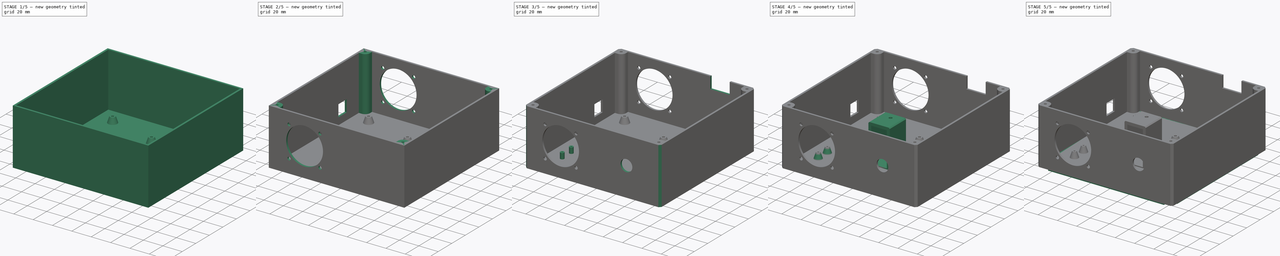
[diagram: build sequence overview — one tinted view per stage of 5, left to right]
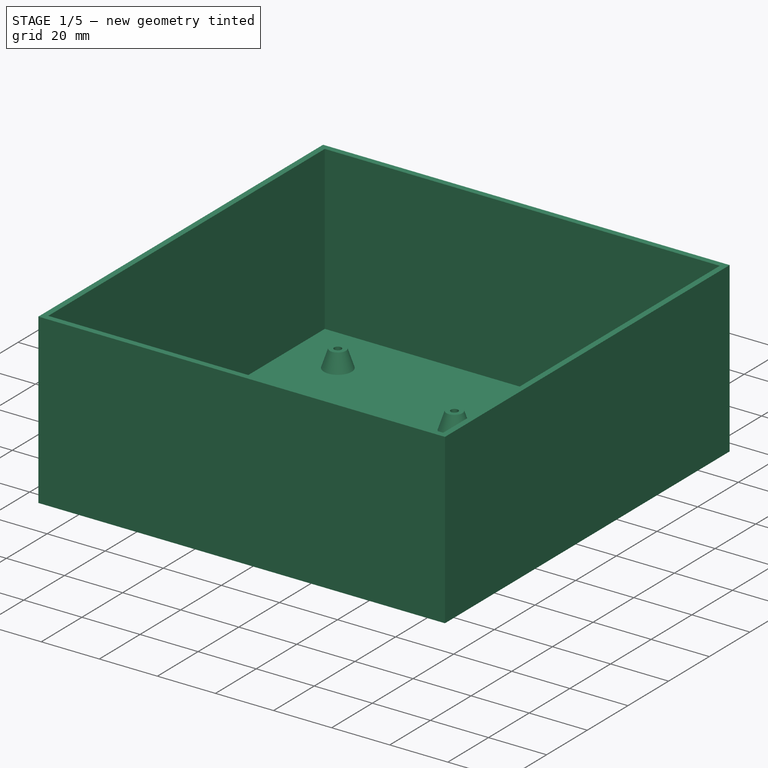
[diagram: stage 1 of 5 — iso view after this stage's code; geometry added in this stage tinted green]
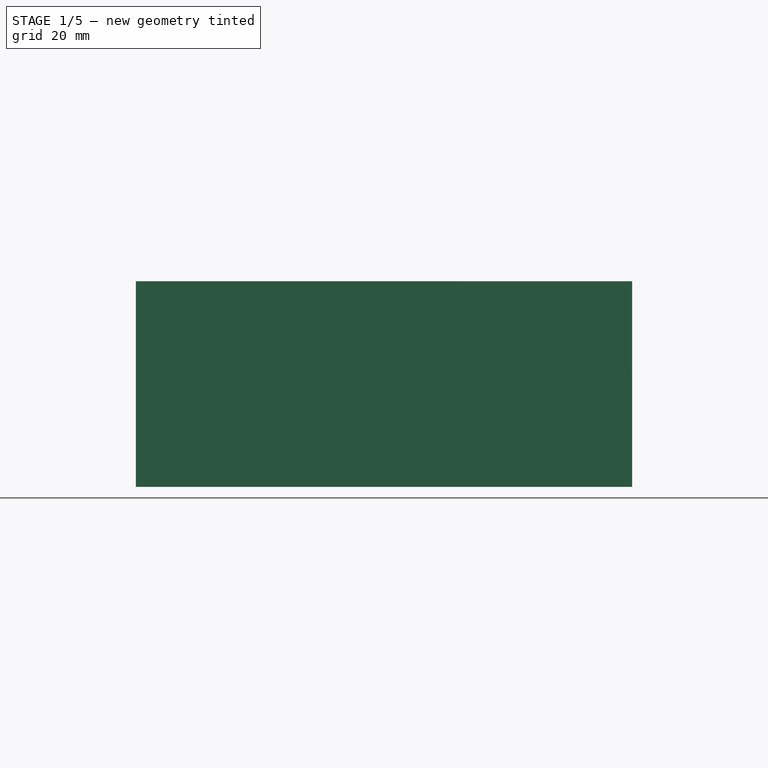
[diagram: stage 1 of 5 — front view after this stage's code; geometry added in this stage tinted green]
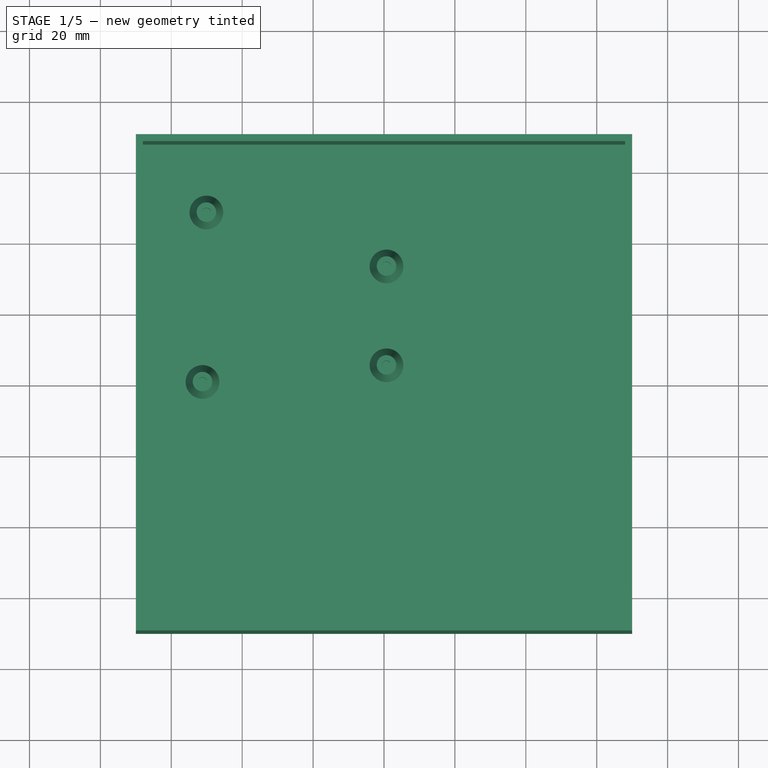
[diagram: stage 1 of 5 — top view after this stage's code; geometry added in this stage tinted green]
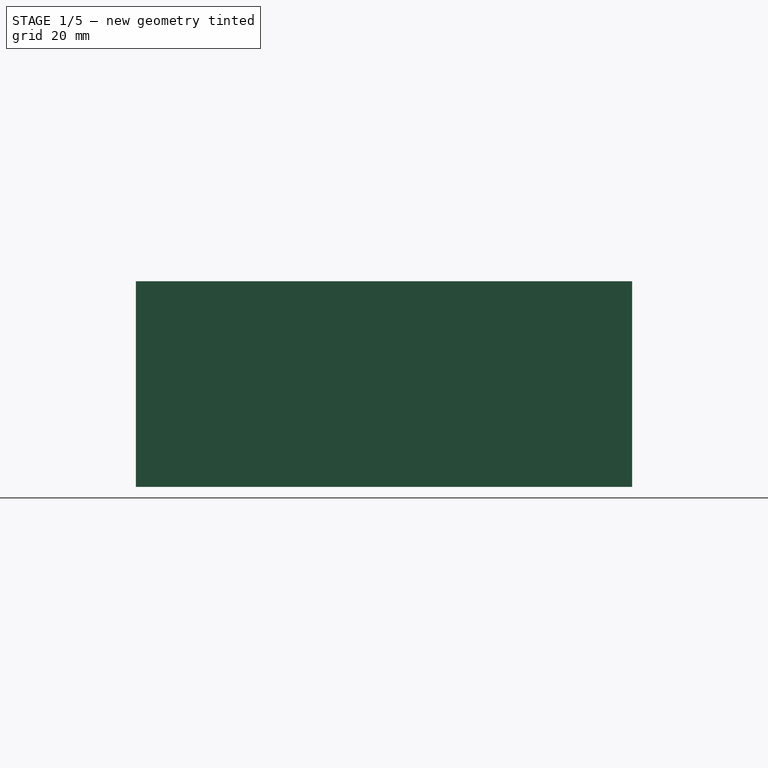
[diagram: stage 1 of 5 — right view after this stage's code; geometry added in this stage tinted green]
FCSTD DOCUMENT  (FreeCAD 1.0R38806 (Git))
Label: Spacious Electronics Enclosure
License: All rights reserved
LicenseURL: https://en.wikipedia.org/wiki/All_rights_reserved
objects: Sketcher::SketchObject×17, PartDesign::Pad×8, PartDesign::Pocket×7, PartDesign::Chamfer×5, PartDesign::Body×3, Spreadsheet::Sheet×1, PartDesign::Fillet×1
note: 100 computed .brp shape members not serialized (recipe doc carries the construction recipe); baked Part::Feature solids carry a one-line shape summary decoded from their .brp

FEATURE [Sketcher::SketchObject] Sketch  label="Base Sketch"
  ArcFitTolerance = 1e-06
  AttachmentSupport = -> [XY_Plane]
  FullyConstrained = true
  MakeInternals = false
  MapMode = 5
  expr: Constraints[10] = <<Spreadsheet>>.Box_Width
  expr: Constraints[11] = <<Spreadsheet>>.Box_Depth
  sketch-geometry (5):
    g0: LineSegment StartX=70 StartY=70 StartZ=0 EndX=-70 EndY=70 EndZ=0
    g1: LineSegment StartX=-70 StartY=70 StartZ=0 EndX=-70 EndY=-70 EndZ=0
    g2: LineSegment StartX=-70 StartY=-70 StartZ=0 EndX=70 EndY=-70 EndZ=0
    g3: LineSegment StartX=70 StartY=-70 StartZ=0 EndX=70 EndY=70 EndZ=0
    g4: GeomPoint [constr] X=0 Y=0 Z=0
  constraints (12):
    c: Coincident(g0,g1)
    c: Coincident(g1,g2)
    c: Coincident(g2,g3)
    c: Coincident(g3,g0)
    c: Horizontal(g0)
    c: Horizontal(g2)
    c: Vertical(g1)
    c: Vertical(g3)
    c: Symmetric(g2,g0,g4)
    c: Coincident(g4,g-1)
    c: DistanceX(g2,g2) = 140
    c: DistanceY(g1,g1) = 140
FEATURE [Spreadsheet::Sheet] Spreadsheet
  cells = A1='Box Width; B1(Box_Width)=140; D1='PCB Width; E1(PCB_Width)=53.3; A2='Box Depth; B2(Box_Depth)=140; D2='PCB Depth; E2(PCB_Depth)=74.8; A3='Box Height; B3(Box_Height)=60; D4='PCB Tap Dia; E4(PCB_Tap_Dia)=2.5; A5='Wall Thickness; B5(Wall_Thickness)=2; D5='PCB Tap Height; E5(PCB_Tap_Height)=6; D6='PCB Tap Thickness; E6(PCB_Tap_Thickness)=3; A7='Microfit 3 Width; A8='Microfit 3 Height; D8='PCB Tap Distance Vert; E8(PCB_Tap_Distance_Vert)=51.9; D9='PCB Tap Distance Vert 2; E9(PCB_Tap_Distance_Vert_2)=50.8; A10='Microfit 4 Width; D10='PCB Tap Distance Horizontal 1; E10(PCB_Tap_Distance_Horizontal_1)=15.2; A11='Microfit 4 Height; D11='PCB Tap Distance Horizontal 2; E11(PCB_Tap_Distance_Horizontal_2)=27.9; D12='PCB Tap Distance Horizontal 3; E12(PCB_Tap_Distance_Horizontal_3)=4.7; D13='PCB Tap Distance Horizontal 4; E13(PCB_Tap_Distance_Horizontal_4)=1.1
FEATURE [PartDesign::Pad] Pad  label="Base"
  Direction = (0,0,1)
  Length = 2
  Length2 = 10
  Profile = -> Sketch
  ReferenceAxis = -> Sketch [N_Axis]
  Refine = true
  Suppressed = false
  Type = 0
  expr: Length = <<Spreadsheet>>.Wall_Thickness
FEATURE [Sketcher::SketchObject] Sketch004  label="PCB Mount Sketch"
  ArcFitTolerance = 1e-06
  AttachmentOffset = pos=(-34,25,2) rot=(0,0,1;1.5708rad)
  AttachmentSupport = -> [XY_Plane]
  FullyConstrained = true
  MakeInternals = false
  MapMode = 5
  Placement = pos=(-34,25,2) rot=(0,0,1;1.5708rad)
  expr: .AttachmentOffset.Base.z = <<Spreadsheet>>.Wall_Thickness
  expr: Constraints[10] = <<Spreadsheet>>.PCB_Width
  expr: Constraints[11] = <<Spreadsheet>>.PCB_Depth
  expr: Constraints[12] = <<Spreadsheet>>.PCB_Tap_Dia
  expr: Constraints[14] = <<Spreadsheet>>.PCB_Tap_Dia + <<Spreadsheet>>.PCB_Tap_Thickness
  expr: Constraints[24] = <<Spreadsheet>>.PCB_Tap_Distance_Horizontal_2
  expr: Constraints[26] = <<Spreadsheet>>.PCB_Tap_Distance_Horizontal_1
  expr: Constraints[27] = <<Spreadsheet>>.PCB_Tap_Distance_Horizontal_3
  expr: Constraints[28] = <<Spreadsheet>>.PCB_Tap_Distance_Horizontal_4
  expr: Constraints[29] = <<Spreadsheet>>.PCB_Tap_Distance_Vert
  sketch-geometry (13):
    g0: LineSegment [constr] StartX=26.65 StartY=-37.4 StartZ=0 EndX=26.65 EndY=37.4 EndZ=0
    g1: LineSegment [constr] StartX=26.65 StartY=37.4 StartZ=0 EndX=-26.65 EndY=37.4 EndZ=0
    g2: LineSegment [constr] StartX=-26.65 StartY=37.4 StartZ=0 EndX=-26.65 EndY=-37.4 EndZ=0
    g3: LineSegment [constr] StartX=-26.65 StartY=-37.4 StartZ=0 EndX=26.65 EndY=-37.4 EndZ=0
    g4: GeomPoint [constr] X=0 Y=0 Z=0
    g5: Circle CenterX=-19.25 CenterY=-34.7 CenterZ=0 NormalX=0 NormalY=0 NormalZ=1 AngleXU=0 Radius=1.25
    g6: Circle CenterX=-19.25 CenterY=-34.7 CenterZ=0 NormalX=0 NormalY=0 NormalZ=1 AngleXU=0 Radius=2.75
    g7: Circle CenterX=8.65 CenterY=-34.7 CenterZ=0 NormalX=0 NormalY=0 NormalZ=1 AngleXU=0 Radius=1.25
    g8: Circle CenterX=8.65 CenterY=-34.7 CenterZ=0 NormalX=0 NormalY=0 NormalZ=1 AngleXU=0 Radius=2.75
    g9: Circle CenterX=-23.95 CenterY=17.2 CenterZ=0 NormalX=0 NormalY=0 NormalZ=1 AngleXU=0 Radius=1.25
    g10: Circle CenterX=-23.95 CenterY=17.2 CenterZ=0 NormalX=0 NormalY=0 NormalZ=1 AngleXU=0 Radius=2.75
    g11: Circle CenterX=23.85 CenterY=16.1 CenterZ=0 NormalX=0 NormalY=0 NormalZ=1 AngleXU=0 Radius=2.75
    g12: Circle CenterX=23.85 CenterY=16.1 CenterZ=0 NormalX=0 NormalY=0 NormalZ=1 AngleXU=0 Radius=1.25
  constraints (32):
    c: Coincident(g0,g1)
    c: Coincident(g1,g2)
    c: Coincident(g2,g3)
    c: Coincident(g3,g0)
    c: Vertical(g0)
    c: Vertical(g2)
    c: Horizontal(g1)
    c: Horizontal(g3)
    c: Symmetric(g2,g0,g4)
    c: Coincident(g4,g-1)
    c: DistanceX(g1,g1) = 53.3
    c: DistanceY(g2,g2) = 74.8
    c: Diameter(g5) = 2.5
    c: Coincident(g6,g5)
    c: Diameter(g6) = 5.5
    c: Coincident(g8,g7)
    c: Coincident(g10,g9)
    c: Coincident(g12,g11)
    c: Equal(g5,g7)
    c: Equal(g5,g9)
    c: Equal(g5,g12)
    c: Equal(g6,g8)
    c: Equal(g6,g11)
    c: Equal(g6,g10)
    c: DistanceX(g5,g7) = 27.9
    c: Horizontal(g5,g7)
    c: DistanceX(g7,g11) = 15.2
    c: DistanceX(g9,g5) = 4.7
    c: DistanceY(g11,g9) = 1.1
    c: DistanceY(g5,g9) = 51.9
    c: DistanceY(g2,g5) = 2.7
    c: DistanceX(g5,g4) = 19.25
FEATURE [PartDesign::Pad] Pad002  label="PCB Mount"
  BaseFeature = -> Pad
  Direction = (0,0,1)
  Length = 6
  Length2 = 10
  Profile = -> Sketch004
  ReferenceAxis = -> Sketch004 [N_Axis]
  Refine = true
  Suppressed = false
  Type = 0
  expr: Length = <<Spreadsheet>>.PCB_Tap_Height
FEATURE [PartDesign::Chamfer] Chamfer  label="PCB Mount Chamfer"
  Angle = 45
  Base = -> Pad002 [Edge15,Edge13,Edge16,Edge14]
  BaseFeature = -> Pad002
  ChamferType = 1
  FlipDirection = false
  Refine = true
  Size = 2
  Size2 = 5.999
  SupportTransform = false
  Suppressed = false
  UseAllEdges = false
FEATURE [Sketcher::SketchObject] Sketch006  label="Walls Sketch"
  ArcFitTolerance = 1e-06
  AttachmentOffset = pos=(0,0,2) rot=(0,0,1;0rad)
  AttachmentSupport = -> [XY_Plane]
  FullyConstrained = true
  MakeInternals = false
  MapMode = 5
  Placement = pos=(0,0,2) rot=(0,0,1;0rad)
  expr: .AttachmentOffset.Base.z = <<Spreadsheet>>.Wall_Thickness
  expr: Constraints[10] = <<Spreadsheet>>.Box_Width
  expr: Constraints[11] = <<Spreadsheet>>.Box_Depth
  expr: Constraints[22] = <<Spreadsheet>>.Box_Width - 2 * <<Spreadsheet>>.Wall_Thickness
  expr: Constraints[23] = <<Spreadsheet>>.Box_Depth - 2 * <<Spreadsheet>>.Wall_Thickness
  sketch-geometry (10):
    g0: LineSegment StartX=70 StartY=70 StartZ=0 EndX=-70 EndY=70 EndZ=0
    g1: LineSegment StartX=-70 StartY=70 StartZ=0 EndX=-70 EndY=-70 EndZ=0
    g2: LineSegment StartX=-70 StartY=-70 StartZ=0 EndX=70 EndY=-70 EndZ=0
    g3: LineSegment StartX=70 StartY=-70 StartZ=0 EndX=70 EndY=70 EndZ=0
    g4: GeomPoint [constr] X=1e-16 Y=-1e-16 Z=0
    g5: LineSegment StartX=68 StartY=-68 StartZ=0 EndX=68 EndY=68 EndZ=0
    g6: LineSegment StartX=68 StartY=68 StartZ=0 EndX=-68 EndY=68 EndZ=0
    g7: LineSegment StartX=-68 StartY=68 StartZ=0 EndX=-68 EndY=-68 EndZ=0
    g8: LineSegment StartX=-68 StartY=-68 StartZ=0 EndX=68 EndY=-68 EndZ=0
    g9: GeomPoint [constr] X=1e-16 Y=-1e-16 Z=0
  constraints (24):
    c: Coincident(g0,g1)
    c: Coincident(g1,g2)
    c: Coincident(g2,g3)
    c: Coincident(g3,g0)
    c: Horizontal(g0)
    c: Horizontal(g2)
    c: Vertical(g1)
    c: Vertical(g3)
    c: Symmetric(g2,g0,g4)
    c: Coincident(g4,g-1)
    c: DistanceX(g2,g2) = 140
    c: DistanceY(g1,g1) = 140
    c: Coincident(g5,g6)
    c: Coincident(g6,g7)
    c: Coincident(g7,g8)
    c: Coincident(g8,g5)
    c: Vertical(g5)
    c: Vertical(g7)
    c: Horizontal(g6)
    c: Horizontal(g8)
    c: Symmetric(g7,g5,g9)
    c: Coincident(g9,g4)
    c: DistanceX(g8,g8) = 136
    c: DistanceY(g7,g7) = 136
FEATURE [PartDesign::Pad] Pad003  label="Walls"
  BaseFeature = -> Chamfer
  Direction = (0,0,1)
  Length = 56
  Length2 = 10
  Profile = -> Sketch006
  ReferenceAxis = -> Sketch006 [N_Axis]
  Refine = true
  Suppressed = false
  Type = 0
  expr: Length = <<Spreadsheet>>.Box_Height - 2 * <<Spreadsheet>>.Wall_Thickness
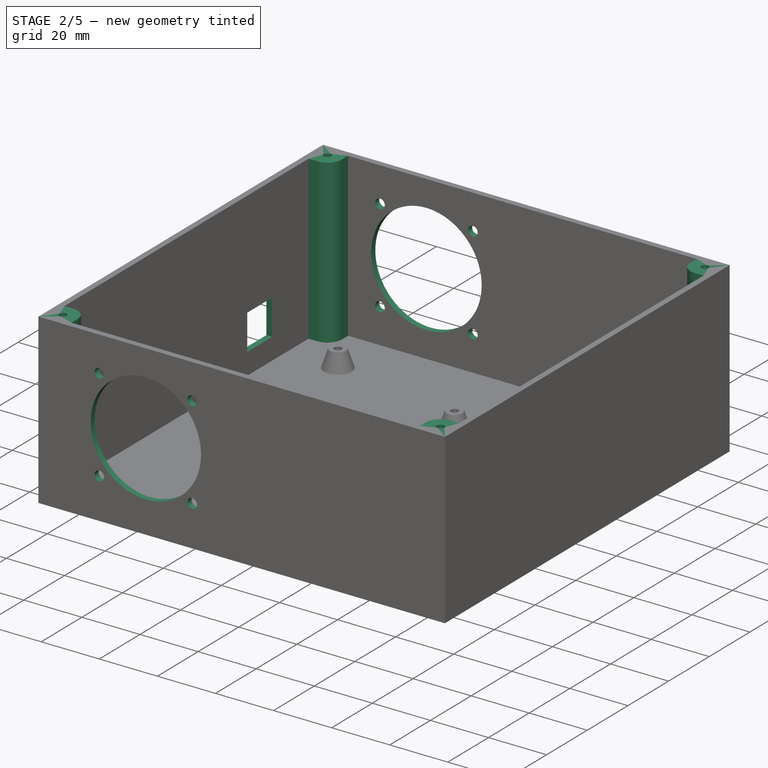
[diagram: stage 2 of 5 — iso view after this stage's code; geometry added in this stage tinted green]
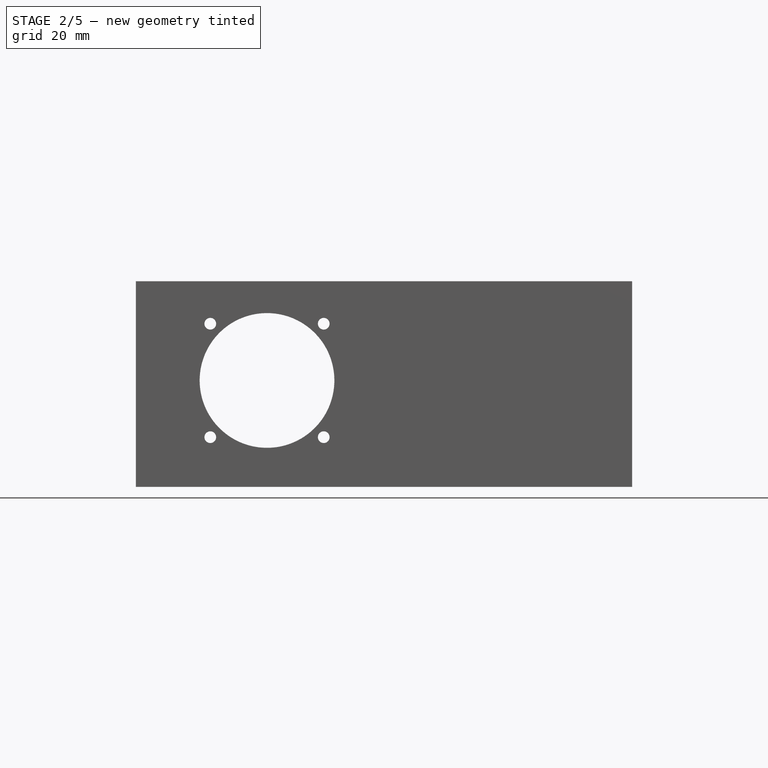
[diagram: stage 2 of 5 — front view after this stage's code; geometry added in this stage tinted green]
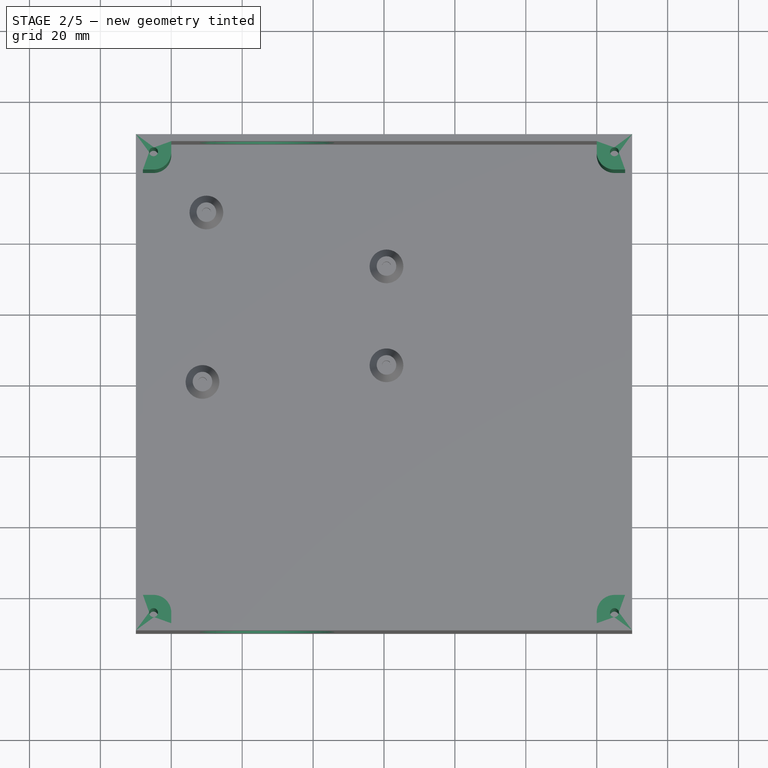
[diagram: stage 2 of 5 — top view after this stage's code; geometry added in this stage tinted green]
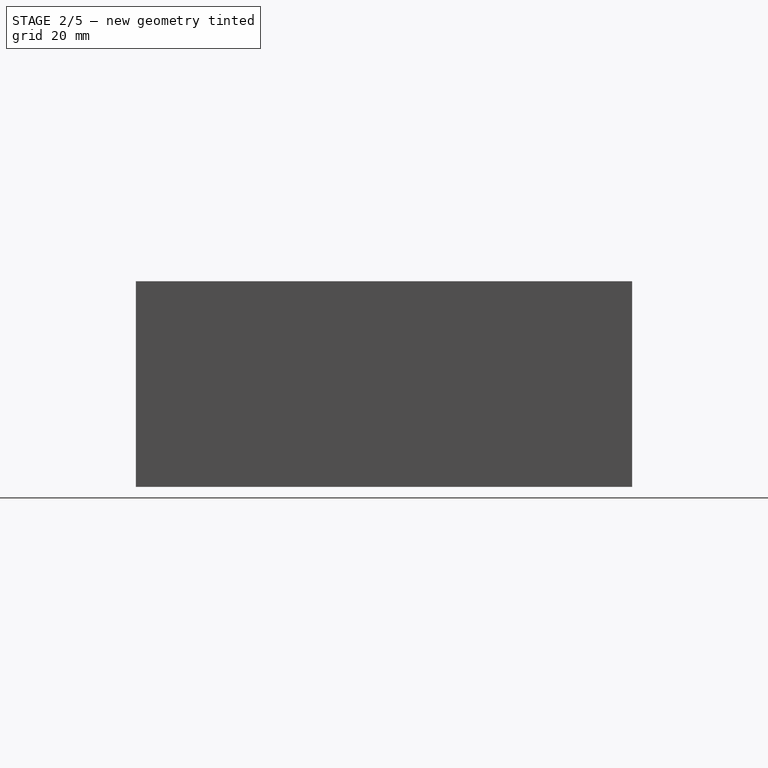
[diagram: stage 2 of 5 — right view after this stage's code; geometry added in this stage tinted green]
FEATURE [Sketcher::SketchObject] Sketch007  label="Lid Pillars Sketch"
  ArcFitTolerance = 1e-06
  AttachmentOffset = pos=(0,0,2) rot=(0,0,1;0rad)
  AttachmentSupport = -> [XY_Plane]
  FullyConstrained = true
  MakeInternals = false
  MapMode = 5
  Placement = pos=(0,0,2) rot=(0,0,1;0rad)
  expr: .AttachmentOffset.Base.z = <<Spreadsheet>>.Wall_Thickness
  expr: Constraints[10] = <<Spreadsheet>>.Box_Width
  expr: Constraints[11] = <<Spreadsheet>>.Box_Depth
  expr: Constraints[56] = <<Spreadsheet>>.PCB_Tap_Dia
  sketch-geometry (25):
    g0: LineSegment [constr] StartX=70 StartY=70 StartZ=0 EndX=-70 EndY=70 EndZ=0
    g1: LineSegment [constr] StartX=-70 StartY=70 StartZ=0 EndX=-70 EndY=-70 EndZ=0
    g2: LineSegment [constr] StartX=-70 StartY=-70 StartZ=0 EndX=70 EndY=-70 EndZ=0
    g3: LineSegment [constr] StartX=70 StartY=-70 StartZ=0 EndX=70 EndY=70 EndZ=0
    g4: GeomPoint [constr] X=0 Y=0 Z=0
    g5: LineSegment StartX=-70 StartY=70 StartZ=0 EndX=-70 EndY=60 EndZ=0
    g6: LineSegment StartX=-70 StartY=60 StartZ=0 EndX=-60 EndY=60 EndZ=0
    g7: LineSegment StartX=-60 StartY=60 StartZ=0 EndX=-60 EndY=70 EndZ=0
    g8: LineSegment StartX=-60 StartY=70 StartZ=0 EndX=-70 EndY=70 EndZ=0
    g9: LineSegment StartX=-70 StartY=-70 StartZ=0 EndX=-60 EndY=-70 EndZ=0
    g10: LineSegment StartX=-60 StartY=-70 StartZ=0 EndX=-60 EndY=-60 EndZ=0
    g11: LineSegment StartX=-60 StartY=-60 StartZ=0 EndX=-70 EndY=-60 EndZ=0
    g12: LineSegment StartX=-70 StartY=-60 StartZ=0 EndX=-70 EndY=-70 EndZ=0
    g13: LineSegment StartX=70 StartY=-70 StartZ=0 EndX=70 EndY=-60 EndZ=0
    g14: LineSegment StartX=70 StartY=-60 StartZ=0 EndX=60 EndY=-60 EndZ=0
    g15: LineSegment StartX=60 StartY=-60 StartZ=0 EndX=60 EndY=-70 EndZ=0
    g16: LineSegment StartX=60 StartY=-70 StartZ=0 EndX=70 EndY=-70 EndZ=0
    g17: LineSegment StartX=70 StartY=70 StartZ=0 EndX=60 EndY=70 EndZ=0
    g18: LineSegment StartX=60 StartY=70 StartZ=0 EndX=60 EndY=60 EndZ=0
    g19: LineSegment StartX=60 StartY=60 StartZ=0 EndX=70 EndY=60 EndZ=0
    g20: LineSegment StartX=70 StartY=60 StartZ=0 EndX=70 EndY=70 EndZ=0
    g21: Circle CenterX=-65 CenterY=65 CenterZ=0 NormalX=0 NormalY=0 NormalZ=1 AngleXU=0 Radius=1.25
    g22: Circle CenterX=-65 CenterY=-65 CenterZ=0 NormalX=0 NormalY=0 NormalZ=1 AngleXU=0 Radius=1.25
    g23: Circle CenterX=65 CenterY=65 CenterZ=0 NormalX=0 NormalY=0 NormalZ=1 AngleXU=0 Radius=1.25
    g24: Circle CenterX=65 CenterY=-65 CenterZ=0 NormalX=0 NormalY=0 NormalZ=1 AngleXU=0 Radius=1.25
  constraints (64):
    c: Coincident(g0,g1)
    c: Coincident(g1,g2)
    c: Coincident(g2,g3)
    c: Coincident(g3,g0)
    c: Horizontal(g0)
    c: Horizontal(g2)
    c: Vertical(g1)
    c: Vertical(g3)
    c: Symmetric(g2,g0,g4)
    c: Coincident(g4,g-1)
    c: DistanceX(g2,g2) = 140
    c: DistanceY(g1,g1) = 140
    c: Coincident(g5,g6)
    c: Coincident(g6,g7)
    c: Coincident(g7,g8)
    c: Coincident(g8,g5)
    c: Vertical(g5)
    c: Vertical(g7)
    c: Horizontal(g6)
    c: Horizontal(g8)
    c: Distance(g5,g7) = 10
    c: Distance(g6,g8) = 10
    c: Coincident(g5,g0)
    c: Coincident(g9,g10)
    c: Coincident(g10,g11)
    c: Coincident(g11,g12)
    c: Coincident(g12,g9)
    c: Horizontal(g9)
    c: Horizontal(g11)
    c: Vertical(g10)
    c: Vertical(g12)
    c: Coincident(g9,g1)
    c: Coincident(g13,g14)
    c: Coincident(g14,g15)
    c: Coincident(g15,g16)
    c: Coincident(g16,g13)
    c: Vertical(g13)
    c: Vertical(g15)
    c: Horizontal(g14)
    c: Horizontal(g16)
    c: Coincident(g13,g2)
    c: Coincident(g17,g18)
    c: Coincident(g18,g19)
    c: Coincident(g19,g20)
    c: Coincident(g20,g17)
    c: Horizontal(g17)
    c: Horizontal(g19)
    c: Vertical(g18)
    c: Vertical(g20)
    c: Coincident(g17,g0)
    c: Equal(g6,g11)
    c: Equal(g10,g7)
    c: Equal(g18,g7)
    c: Equal(g19,g6)
    c: Equal(g6,g14)
    c: Equal(g15,g7)
    c: Diameter(g21) = 2.5
    c: Symmetric(g0,g6,g21)
    c: Equal(g21,g22)
    c: Equal(g24,g21)
    c: Equal(g21,g23)
    c: Symmetric(g10,g1,g22)
    c: Symmetric(g15,g13,g24)
    c: Symmetric(g0,g18,g23)
FEATURE [PartDesign::Pad] Pad004  label="Lid Pillars"
  BaseFeature = -> Pad003
  Direction = (0,0,1)
  Length = 56
  Length2 = 10
  Profile = -> Sketch007
  ReferenceAxis = -> Sketch007 [N_Axis]
  Refine = true
  Suppressed = false
  Type = 0
  expr: Length = <<Spreadsheet>>.Box_Height - 2 * <<Spreadsheet>>.Wall_Thickness
FEATURE [PartDesign::Fillet] Fillet  label="Lid Pillar Fillet"
  Base = -> Pad004 [Edge56,Edge54,Edge55,Edge53]
  BaseFeature = -> Pad004
  Radius = 5
  Refine = true
  SupportTransform = false
  Suppressed = false
  UseAllEdges = false
FEATURE [Sketcher::SketchObject] Sketch008  label="Fan CutOut Sketch"
  ArcFitTolerance = 1e-06
  AttachmentSupport = -> [XZ_Plane]
  FullyConstrained = true
  MakeInternals = false
  MapMode = 5
  Placement = pos=(0,0,0) rot=(1,0,0;1.5708rad)
  expr: Constraints[10] = <<Spreadsheet>>.Wall_Thickness
  expr: Constraints[11] = <<Spreadsheet>>.Box_Height - 2 * <<Spreadsheet>>.Wall_Thickness
  expr: Constraints[12] = <<Spreadsheet>>.Box_Width
  expr: Constraints[33] = (<<Spreadsheet>>.Box_Height - 2 * <<Spreadsheet>>.Wall_Thickness) / 2
  expr: Constraints[34] = <<Spreadsheet>>.Box_Width / 4 - <<Spreadsheet>>.Wall_Thickness
  sketch-geometry (15):
    g0: LineSegment [constr] StartX=70 StartY=2 StartZ=0 EndX=70 EndY=58 EndZ=0
    g1: LineSegment [constr] StartX=70 StartY=58 StartZ=0 EndX=-70 EndY=58 EndZ=0
    g2: LineSegment [constr] StartX=-70 StartY=58 StartZ=0 EndX=-70 EndY=2 EndZ=0
    g3: LineSegment [constr] StartX=-70 StartY=2 StartZ=0 EndX=70 EndY=2 EndZ=0
    g4: GeomPoint [constr] X=0 Y=30 Z=0
    g5: Circle CenterX=-49 CenterY=46 CenterZ=0 NormalX=0 NormalY=0 NormalZ=1 AngleXU=0 Radius=1.65
    g6: Circle CenterX=-17 CenterY=46 CenterZ=0 NormalX=0 NormalY=0 NormalZ=1 AngleXU=0 Radius=1.65
    g7: Circle CenterX=-17 CenterY=14 CenterZ=0 NormalX=0 NormalY=0 NormalZ=1 AngleXU=0 Radius=1.65
    g8: Circle CenterX=-49 CenterY=14 CenterZ=0 NormalX=0 NormalY=0 NormalZ=1 AngleXU=0 Radius=1.65
    g9: GeomPoint X=-2e-15 Y=58 Z=0
    g10: GeomPoint X=2.4e-15 Y=2 Z=0
    g11: LineSegment [constr] StartX=-49 StartY=46 StartZ=0 EndX=-17 EndY=14 EndZ=0
    g12: LineSegment [constr] StartX=-49 StartY=14 StartZ=0 EndX=-17 EndY=46 EndZ=0
    g13: GeomPoint [constr] X=-33 Y=30 Z=0
    g14: Circle CenterX=-33 CenterY=30 CenterZ=0 NormalX=0 NormalY=0 NormalZ=1 AngleXU=0 Radius=19
  constraints (35):
    c: Coincident(g0,g1)
    c: Coincident(g1,g2)
    c: Coincident(g2,g3)
    c: Coincident(g3,g0)
    c: Vertical(g0)
    c: Vertical(g2)
    c: Horizontal(g1)
    c: Horizontal(g3)
    c: Symmetric(g2,g0,g4)
    c: PointOnObject(g4,g-2)
    c: DistanceY(g-1,g2) = 2
    c: DistanceY(g2,g2) = 56
    c: DistanceX(g1,g1) = 140
    c: Diameter(g8) = 3.3
    c: Equal(g8,g7)
    c: Equal(g7,g6)
    c: Equal(g7,g5)
    c: Horizontal(g8,g7)
    c: Vertical(g6,g7)
    c: Vertical(g5,g8)
    c: Horizontal(g5,g6)
    c: DistanceX(g8,g7) = 32
    c: DistanceY(g7,g6) = 32
    c: Symmetric(g1,g1,g9)
    c: Symmetric(g3,g3,g10)
    c: Coincident(g11,g5)
    c: Coincident(g11,g7)
    c: Coincident(g12,g8)
    c: Coincident(g12,g6)
    c: PointOnObject(g13,g11)
    c: PointOnObject(g13,g12)
    c: Coincident(g14,g13)
    c: Diameter(g14) = 38
    c: DistanceY(g2,g13) = 28
    c: DistanceX(g13,g10) = 33
FEATURE [PartDesign::Pocket] Pocket  label="Fan Cutout"
  BaseFeature = -> Fillet
  Direction = (0,1,-2e-16)
  Length = 5
  Length2 = 5
  Midplane = true
  Profile = -> Sketch008
  ReferenceAxis = -> Sketch008 [N_Axis]
  Refine = true
  Suppressed = false
  Type = 1
FEATURE [Sketcher::SketchObject] Sketch009  label="Arduino CutOut Sketch"
  ArcFitTolerance = 1e-06
  AttachmentSupport = -> [YZ_Plane]
  FullyConstrained = false
  MakeInternals = false
  MapMode = 5
  Placement = pos=(0,0,0) rot=(0.57735,0.57735,0.57735;2.0944rad)
  sketch-geometry (10):
    g0: LineSegment [constr] StartX=-26.65 StartY=8 StartZ=0 EndX=26.65 EndY=8 EndZ=0
    g1: LineSegment [constr] StartX=26.65 StartY=8 StartZ=0 EndX=26.65 EndY=37.7911 EndZ=0
    g2: LineSegment [constr] StartX=26.65 StartY=37.7911 StartZ=0 EndX=-26.65 EndY=37.7911 EndZ=0
    g3: LineSegment [constr] StartX=-26.65 StartY=37.7911 StartZ=0 EndX=-26.65 EndY=8 EndZ=0
    g4: GeomPoint [constr] X=0 Y=22.8955 Z=0
    g5: LineSegment StartX=29.85 StartY=9.4 StartZ=0 EndX=42.15 EndY=9.4 EndZ=0
    g6: LineSegment StartX=42.15 StartY=9.4 StartZ=0 EndX=42.15 EndY=21.6 EndZ=0
    g7: LineSegment StartX=42.15 StartY=21.6 StartZ=0 EndX=29.85 EndY=21.6 EndZ=0
    g8: LineSegment StartX=29.85 StartY=21.6 StartZ=0 EndX=29.85 EndY=9.4 EndZ=0
    g9: GeomPoint [constr] X=36 Y=15.5 Z=0
  constraints (25):
    c: Coincident(g0,g1)
    c: Coincident(g1,g2)
    c: Coincident(g2,g3)
    c: Coincident(g3,g0)
    c: Horizontal(g0)
    c: Horizontal(g2)
    c: Vertical(g1)
    c: Vertical(g3)
    c: Symmetric(g2,g0,g4)
    c: PointOnObject(g4,g-2)
    c: DistanceX(g2,g2) = 53.3
    c: DistanceY(g-1,g0) = 8
    c: Coincident(g5,g6)
    c: Coincident(g6,g7)
    c: Coincident(g7,g8)
    c: Coincident(g8,g5)
    c: Horizontal(g5)
    c: Horizontal(g7)
    c: Vertical(g6)
    c: Vertical(g8)
    c: Symmetric(g7,g5,g9)
    c: DistanceY(g6,g6) = 12.2
    c: DistanceX(g7,g7) = 12.3
    c: DistanceY(g0,g5) = 1.4
    c: DistanceX(g5,g0) = -15.5
FEATURE [PartDesign::Pocket] Pocket001  label="Arduino CutOut"
  BaseFeature = -> Pocket
  Direction = (-1,0,0)
  Length = 140
  Length2 = 5
  Profile = -> Sketch009
  ReferenceAxis = -> Sketch009 [N_Axis]
  Refine = true
  Suppressed = false
  Type = 0
  expr: Length = <<Spreadsheet>>.Box_Width
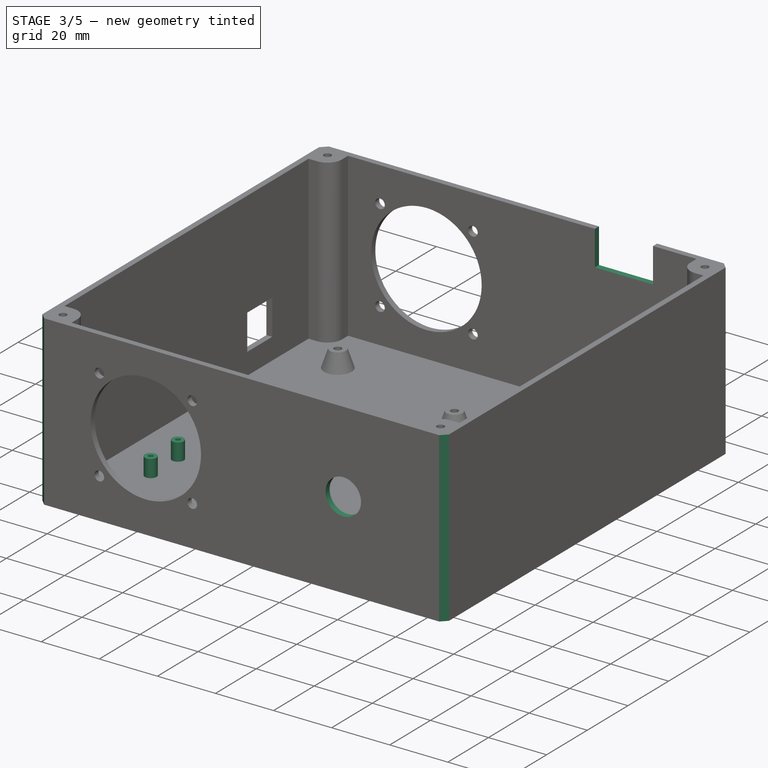
[diagram: stage 3 of 5 — iso view after this stage's code; geometry added in this stage tinted green]
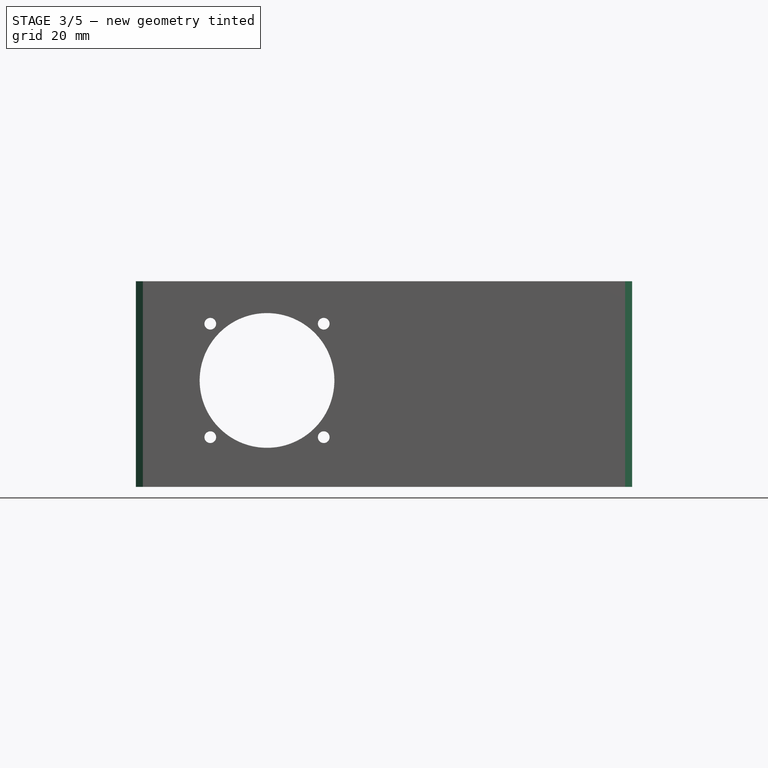
[diagram: stage 3 of 5 — front view after this stage's code; geometry added in this stage tinted green]
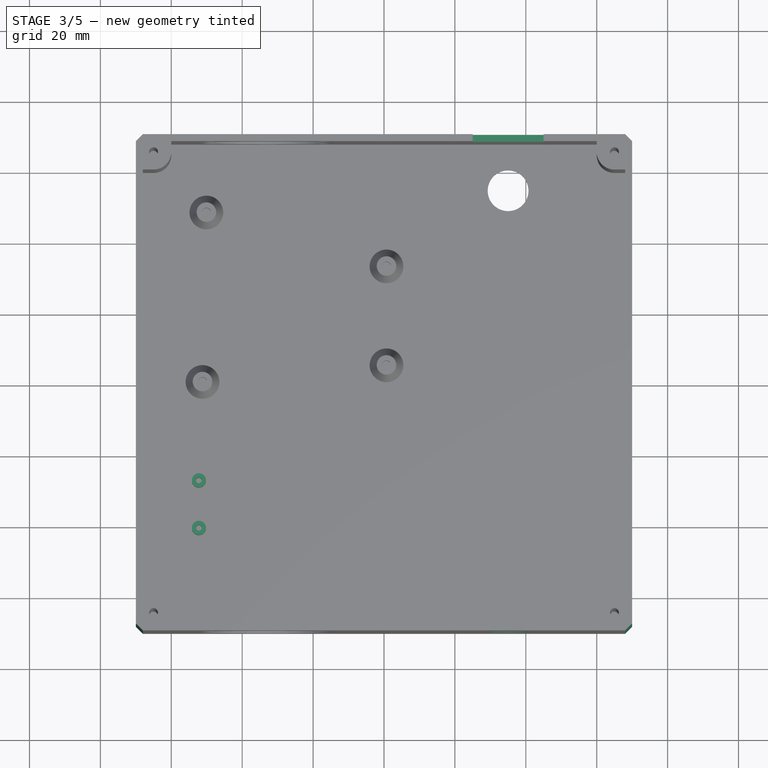
[diagram: stage 3 of 5 — top view after this stage's code; geometry added in this stage tinted green]
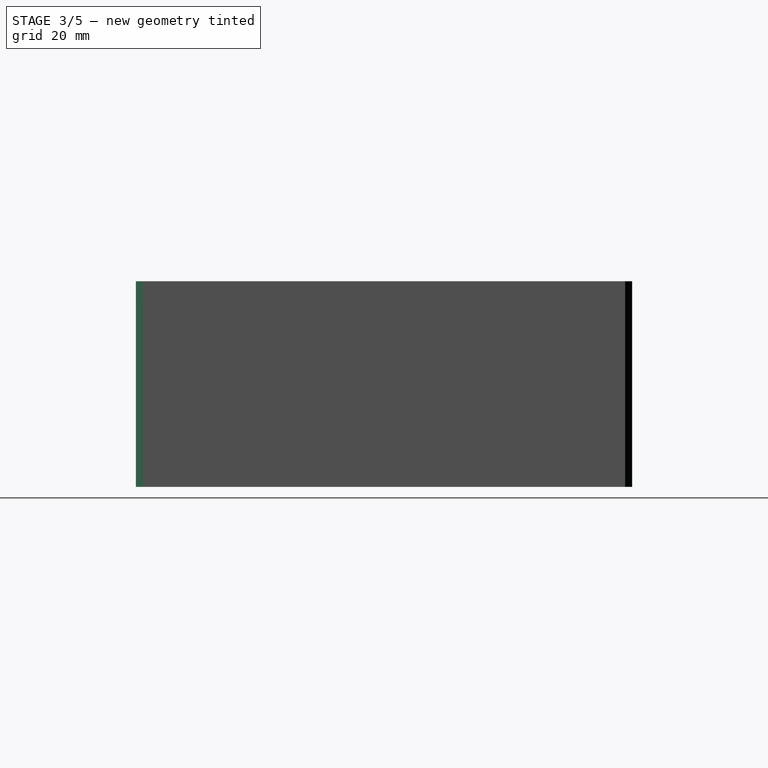
[diagram: stage 3 of 5 — right view after this stage's code; geometry added in this stage tinted green]
FEATURE [Sketcher::SketchObject] Sketch010  label="12v CutOut Sketch"
  ArcFitTolerance = 1e-06
  AttachmentSupport = -> [XY_Plane]
  FullyConstrained = true
  MakeInternals = false
  MapMode = 5
  expr: Constraints[10] = <<Spreadsheet>>.Box_Width
  expr: Constraints[11] = <<Spreadsheet>>.Box_Depth
  sketch-geometry (6):
    g0: LineSegment [constr] StartX=70 StartY=70 StartZ=0 EndX=-70 EndY=70 EndZ=0
    g1: LineSegment [constr] StartX=-70 StartY=70 StartZ=0 EndX=-70 EndY=-70 EndZ=0
    g2: LineSegment [constr] StartX=-70 StartY=-70 StartZ=0 EndX=70 EndY=-70 EndZ=0
    g3: LineSegment [constr] StartX=70 StartY=-70 StartZ=0 EndX=70 EndY=70 EndZ=0
    g4: GeomPoint [constr] X=-1e-16 Y=0 Z=0
    g5: Circle CenterX=35 CenterY=55 CenterZ=0 NormalX=0 NormalY=0 NormalZ=1 AngleXU=0 Radius=5.75
  constraints (15):
    c: Coincident(g0,g1)
    c: Coincident(g1,g2)
    c: Coincident(g2,g3)
    c: Coincident(g3,g0)
    c: Horizontal(g0)
    c: Horizontal(g2)
    c: Vertical(g1)
    c: Vertical(g3)
    c: Symmetric(g2,g0,g4)
    c: Coincident(g4,g-1)
    c: DistanceX(g2,g2) = 140
    c: DistanceY(g1,g1) = 140
    c: Diameter(g5) = 11.5
    c: DistanceY(g5,g0) = 15
    c: DistanceX(g4,g5) = 35
FEATURE [PartDesign::Pocket] Pocket002  label="12v CutOut"
  BaseFeature = -> Pocket001
  Direction = (0,0,-1)
  Length = 2
  Length2 = 5
  Profile = -> Sketch010
  ReferenceAxis = -> Sketch010 [N_Axis]
  Refine = true
  Reversed = true
  Suppressed = false
  Type = 0
  expr: Length = <<Spreadsheet>>.Wall_Thickness
FEATURE [Sketcher::SketchObject] Sketch011  label="Power Button CutOut Sketch"
  ArcFitTolerance = 1e-06
  AttachmentSupport = -> [XZ_Plane]
  FullyConstrained = false
  MakeInternals = false
  MapMode = 5
  Placement = pos=(0,0,0) rot=(1,0,0;1.5708rad)
  expr: Constraints[10] = <<Spreadsheet>>.Wall_Thickness
  expr: Constraints[11] = <<Spreadsheet>>.Box_Width
  expr: Constraints[13] = <<Spreadsheet>>.Box_Width / 4
  expr: Constraints[14] = 30
  expr: Constraints[9] = <<Spreadsheet>>.Box_Height - <<Spreadsheet>>.Wall_Thickness * 2
  sketch-geometry (6):
    g0: LineSegment [constr] StartX=70 StartY=2 StartZ=0 EndX=70 EndY=58 EndZ=0
    g1: LineSegment [constr] StartX=70 StartY=58 StartZ=0 EndX=-70 EndY=58 EndZ=0
    g2: LineSegment [constr] StartX=-70 StartY=58 StartZ=0 EndX=-70 EndY=2 EndZ=0
    g3: LineSegment [constr] StartX=-70 StartY=2 StartZ=0 EndX=70 EndY=2 EndZ=0
    g4: GeomPoint [constr] X=2e-16 Y=30 Z=0
    g5: Circle CenterX=35 CenterY=30 CenterZ=0 NormalX=0 NormalY=0 NormalZ=1 AngleXU=0 Radius=6.1
  constraints (15):
    c: Coincident(g0,g1)
    c: Coincident(g1,g2)
    c: Coincident(g2,g3)
    c: Coincident(g3,g0)
    c: Vertical(g0)
    c: Vertical(g2)
    c: Horizontal(g1)
    c: Horizontal(g3)
    c: Symmetric(g2,g0,g4)
    c: DistanceY(g2,g2) = 56
    c: DistanceY(g-1,g2) = 2
    c: DistanceX(g1,g1) = 140
    c: Diameter(g5) = 12.2
    c: DistanceX(g-1,g5) = 35
    c: DistanceY(g-1,g5) = 30
FEATURE [PartDesign::Pocket] Pocket003  label="Power Button CutOut"
  BaseFeature = -> Pocket002
  Direction = (0,1,-2e-16)
  Length = 140
  Length2 = 5
  Profile = -> Sketch011
  ReferenceAxis = -> Sketch011 [N_Axis]
  Refine = true
  Reversed = true
  Suppressed = false
  Type = 0
  expr: Length = <<Spreadsheet>>.Box_Depth
FEATURE [Sketcher::SketchObject] Sketch015  label="MicroFit CutOut Sketch"
  ArcFitTolerance = 1e-06
  AttachmentSupport = -> [XY_Plane]
  FullyConstrained = true
  MakeInternals = false
  MapMode = 5
  expr: Constraints[10] = <<Spreadsheet>>.Box_Width
  expr: Constraints[11] = <<Spreadsheet>>.Box_Depth
  sketch-geometry (6):
    g0: LineSegment [constr] StartX=70 StartY=70 StartZ=0 EndX=-70 EndY=70 EndZ=0
    g1: LineSegment [constr] StartX=-70 StartY=70 StartZ=0 EndX=-70 EndY=-70 EndZ=0
    g2: LineSegment [constr] StartX=-70 StartY=-70 StartZ=0 EndX=70 EndY=-70 EndZ=0
    g3: LineSegment [constr] StartX=70 StartY=-70 StartZ=0 EndX=70 EndY=70 EndZ=0
    g4: GeomPoint [constr] X=0 Y=0 Z=0
    g5: Circle [constr] CenterX=0 CenterY=55 CenterZ=0 NormalX=0 NormalY=0 NormalZ=1 AngleXU=0 Radius=5.75
  constraints (15):
    c: Coincident(g0,g1)
    c: Coincident(g1,g2)
    c: Coincident(g2,g3)
    c: Coincident(g3,g0)
    c: Horizontal(g0)
    c: Horizontal(g2)
    c: Vertical(g1)
    c: Vertical(g3)
    c: Symmetric(g2,g0,g4)
    c: Coincident(g4,g-1)
    c: DistanceX(g2,g2) = 140
    c: DistanceY(g1,g1) = 140
    c: PointOnObject(g5,g-2)
    c: Diameter(g5) = 11.5
    c: DistanceY(g5,g0) = 15
FEATURE [Sketcher::SketchObject] Sketch016  label="Wiring CutOut Sketch"
  ArcFitTolerance = 1e-06
  AttachmentSupport = -> [XZ_Plane]
  FullyConstrained = true
  MakeInternals = false
  MapMode = 5
  Placement = pos=(0,0,0) rot=(1,0,0;1.5708rad)
  expr: Constraints[11] = <<Spreadsheet>>.Box_Height - <<Spreadsheet>>.Wall_Thickness - 12
  expr: Constraints[12] = <<Spreadsheet>>.Box_Width / 4 - 10
  sketch-geometry (5):
    g0: LineSegment StartX=45 StartY=58 StartZ=0 EndX=25 EndY=58 EndZ=0
    g1: LineSegment StartX=25 StartY=58 StartZ=0 EndX=25 EndY=46 EndZ=0
    g2: LineSegment StartX=25 StartY=46 StartZ=0 EndX=45 EndY=46 EndZ=0
    g3: LineSegment StartX=45 StartY=46 StartZ=0 EndX=45 EndY=58 EndZ=0
    g4: GeomPoint [constr] X=35 Y=52 Z=0
  constraints (13):
    c: Coincident(g0,g1)
    c: Coincident(g1,g2)
    c: Coincident(g2,g3)
    c: Coincident(g3,g0)
    c: Horizontal(g0)
    c: Horizontal(g2)
    c: Vertical(g1)
    c: Vertical(g3)
    c: Symmetric(g2,g0,g4)
    c: DistanceX(g0,g0) = 20
    c: DistanceY(g1,g1) = 12
    c: DistanceY(g-1,g1) = 46
    c: DistanceX(g-1,g1) = 25
FEATURE [PartDesign::Pocket] Pocket005  label="Wiring CutOut"
  BaseFeature = -> Pocket003
  Direction = (0,1,-2e-16)
  Length = 140
  Length2 = 5
  Profile = -> Sketch016
  ReferenceAxis = -> Sketch016 [N_Axis]
  Refine = true
  Suppressed = false
  Type = 0
  expr: Length = <<Spreadsheet>>.Box_Depth
FEATURE [PartDesign::Body] Body002  label="Mount"
  AllowCompound = false
  Group = -> [Sketch017,Pad007,Sketch018,Pocket006,Chamfer003]
  Origin = -> Origin002
  Placement = pos=(0,95,0) rot=(0,0,1;0rad)
  Tip = -> Chamfer003
  expr: .Placement.Base.y = <<Spreadsheet>>.Box_Depth / 2 + 25
FEATURE [PartDesign::Chamfer] Chamfer001
  Angle = 45
  Base = -> Pocket005 [Edge56,Edge54,Edge44,Edge47]
  BaseFeature = -> Pocket005
  ChamferType = 0
  FlipDirection = false
  Refine = true
  Size = 2
  Size2 = 1
  SupportTransform = false
  Suppressed = false
  UseAllEdges = false
FEATURE [Sketcher::SketchObject] Sketch019
  ArcFitTolerance = 1e-06
  AttachmentOffset = pos=(0,0,2) rot=(0,0,1;0rad)
  AttachmentSupport = -> [XY_Plane]
  FullyConstrained = true
  MakeInternals = false
  MapMode = 5
  Placement = pos=(0,0,2) rot=(0,0,1;0rad)
  expr: .AttachmentOffset.Base.z = <<Spreadsheet>>.Wall_Thickness
  expr: Constraints[14] = 15 - 1.6
  sketch-geometry (8):
    g0: LineSegment [constr] StartX=-20 StartY=-25 StartZ=0 EndX=-54 EndY=-25 EndZ=0
    g1: LineSegment [constr] StartX=-54 StartY=-25 StartZ=0 EndX=-54 EndY=-42 EndZ=0
    g2: LineSegment [constr] StartX=-54 StartY=-42 StartZ=0 EndX=-20 EndY=-42 EndZ=0
    g3: LineSegment [constr] StartX=-20 StartY=-42 StartZ=0 EndX=-20 EndY=-25 EndZ=0
    g4: Circle CenterX=-52.2 CenterY=-26.8 CenterZ=0 NormalX=0 NormalY=0 NormalZ=1 AngleXU=0 Radius=0.8
    g5: Circle CenterX=-52.2 CenterY=-40.2 CenterZ=0 NormalX=0 NormalY=0 NormalZ=1 AngleXU=0 Radius=0.8
    g6: Circle CenterX=-52.2 CenterY=-26.8 CenterZ=0 NormalX=0 NormalY=0 NormalZ=1 AngleXU=0 Radius=2
    g7: Circle CenterX=-52.2 CenterY=-40.2 CenterZ=0 NormalX=0 NormalY=0 NormalZ=1 AngleXU=0 Radius=2
  constraints (22):
    c: Coincident(g0,g1)
    c: Coincident(g1,g2)
    c: Coincident(g2,g3)
    c: Coincident(g3,g0)
    c: Horizontal(g0)
    c: Horizontal(g2)
    c: Vertical(g1)
    c: Vertical(g3)
    c: DistanceX(g0,g0) = 34
    c: DistanceY(g1,g1) = 17
    c: DistanceY(g0,g-1) = 25
    c: DistanceX(g0,g-1) = 20
    c: Diameter(g4) = 1.6
    c: Diameter(g5) = 1.6
    c: DistanceY(g5,g4) = 13.4
    c: Vertical(g5,g4)
    c: DistanceY(g4,g0) = 1.8
    c: DistanceX(g1,g5) = 1.8
    c: Diameter(g6) = 4
    c: Coincident(g6,g4)
    c: Diameter(g7) = 4
    c: Coincident(g7,g5)
FEATURE [PartDesign::Pad] Pad008  label="Mosfet Mount"
  BaseFeature = -> Chamfer001
  Direction = (0,0,1)
  Length = 6
  Length2 = 10
  Profile = -> Sketch019
  ReferenceAxis = -> Sketch019 [N_Axis]
  Refine = true
  Suppressed = false
  Type = 0
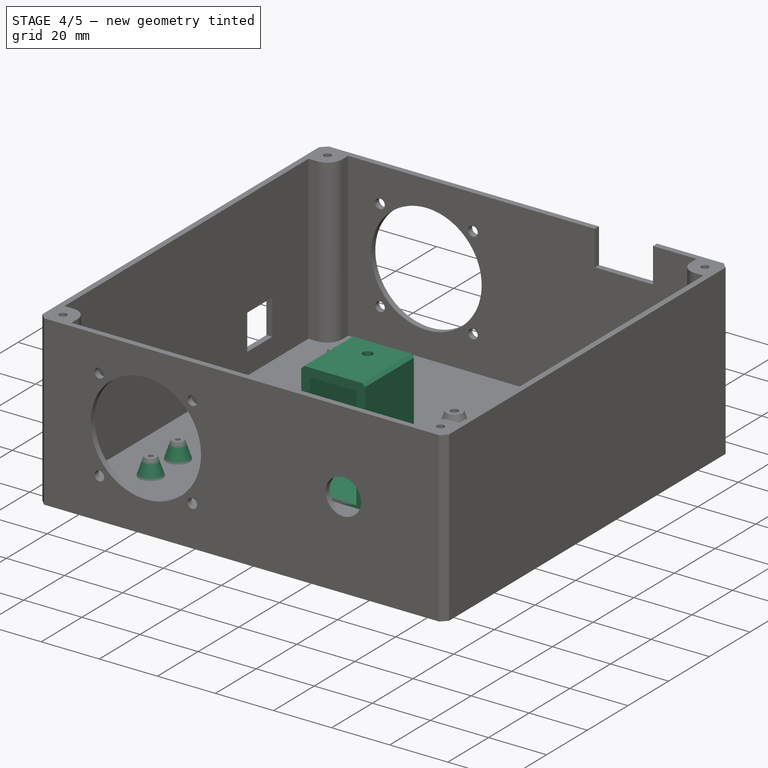
[diagram: stage 4 of 5 — iso view after this stage's code; geometry added in this stage tinted green]
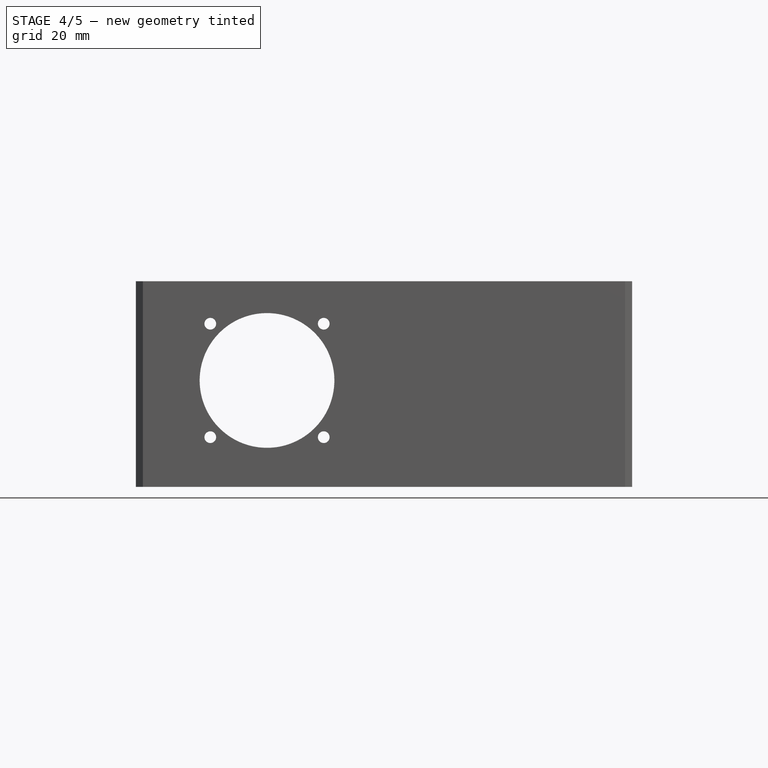
[diagram: stage 4 of 5 — front view after this stage's code; geometry added in this stage tinted green]
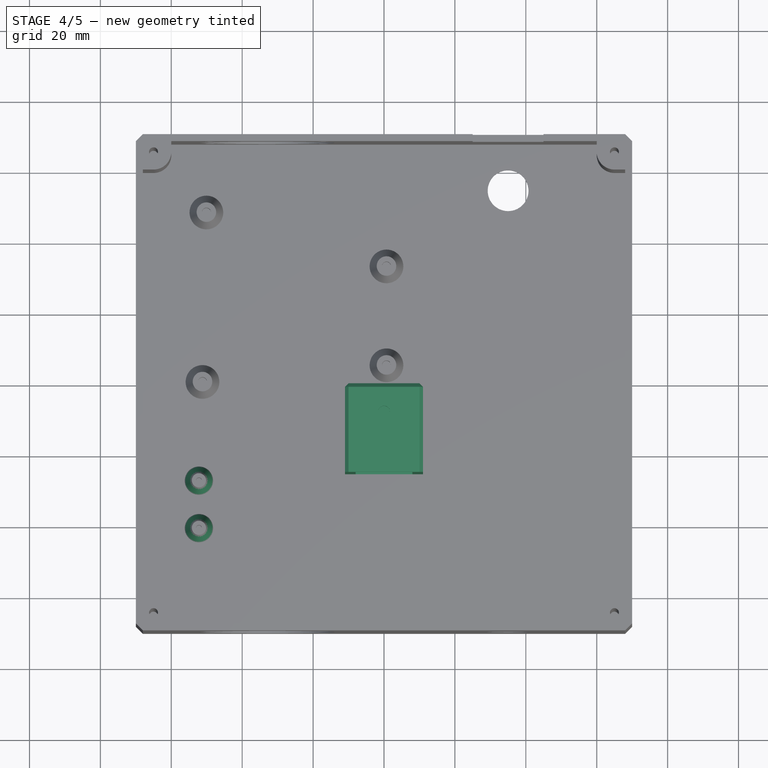
[diagram: stage 4 of 5 — top view after this stage's code; geometry added in this stage tinted green]
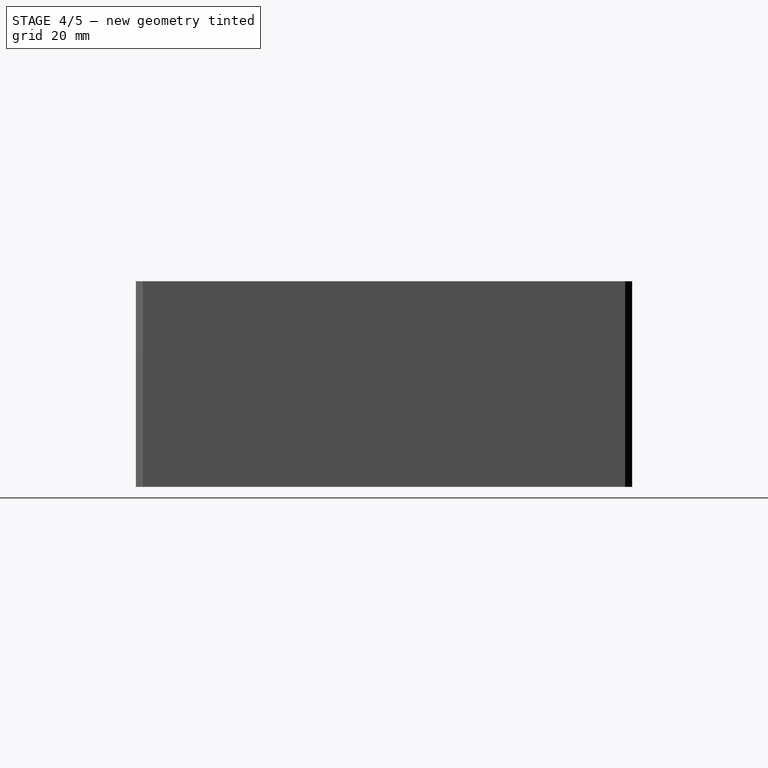
[diagram: stage 4 of 5 — right view after this stage's code; geometry added in this stage tinted green]
FEATURE [PartDesign::Body] Body001  label="Lid"
  AllowCompound = false
  Group = -> [Sketch012,Sketch013,Pad005,Pad006,Sketch014,Pocket004,Chamfer002]
  Origin = -> Origin001
  Placement = pos=(0,0,58) rot=(0,0,1;0rad)
  Tip = -> Chamfer002
  expr: .Placement.Base.z = <<Spreadsheet>>.Box_Height - <<Spreadsheet>>.Wall_Thickness
FEATURE [Sketcher::SketchObject] Sketch017  label="Mount Sketch"
  ArcFitTolerance = 1e-06
  AttachmentSupport = -> [XZ_Plane002]
  FullyConstrained = true
  MakeInternals = false
  MapMode = 5
  Placement = pos=(0,0,0) rot=(1,0,0;1.5708rad)
  sketch-geometry (10):
    g0: LineSegment StartX=8 StartY=3 StartZ=0 EndX=8 EndY=38.5 EndZ=0
    g1: LineSegment StartX=8 StartY=38.5 StartZ=0 EndX=-8 EndY=38.5 EndZ=0
    g2: LineSegment StartX=-8 StartY=38.5 StartZ=0 EndX=-8 EndY=3 EndZ=0
    g3: LineSegment StartX=-8 StartY=3 StartZ=0 EndX=8 EndY=3 EndZ=0
    g4: GeomPoint [constr] X=0 Y=20.75 Z=0
    g5: LineSegment StartX=11 StartY=41.5 StartZ=0 EndX=-11 EndY=41.5 EndZ=0
    g6: LineSegment StartX=-11 StartY=41.5 StartZ=0 EndX=-11 EndY=0 EndZ=0
    g7: LineSegment StartX=-11 StartY=0 StartZ=0 EndX=11 EndY=0 EndZ=0
    g8: LineSegment StartX=11 StartY=0 StartZ=0 EndX=11 EndY=41.5 EndZ=0
    g9: GeomPoint [constr] X=0 Y=20.75 Z=0
  constraints (26):
    c: Coincident(g0,g1)
    c: Coincident(g1,g2)
    c: Coincident(g2,g3)
    c: Coincident(g3,g0)
    c: Vertical(g0)
    c: Vertical(g2)
    c: Horizontal(g1)
    c: Horizontal(g3)
    c: Symmetric(g2,g0,g4)
    c: PointOnObject(g4,g-2)
    c: DistanceY(g2,g2) = 35.5
    c: DistanceX(g1,g1) = 16
    c: DistanceY(g-1,g2) = 3
    c: Coincident(g5,g6)
    c: Coincident(g6,g7)
    c: Coincident(g7,g8)
    c: Coincident(g8,g5)
    c: Horizontal(g5)
    c: Horizontal(g7)
    c: Vertical(g6)
    c: Vertical(g8)
    c: Symmetric(g7,g5,g9)
    c: PointOnObject(g9,g-2)
    c: PointOnObject(g6,g-1)
    c: DistanceY(g1,g5) = 3
    c: DistanceX(g5,g1) = 3
FEATURE [PartDesign::Pad] Pad007  label="Mount001"
  Direction = (0,-1,2e-16)
  Length = 25
  Length2 = 10
  Placement = pos=(0,0,0) rot=(1,0,0;1.5708rad)
  Profile = -> Sketch017
  ReferenceAxis = -> Sketch017 [N_Axis]
  Refine = true
  Suppressed = false
  Type = 0
FEATURE [Sketcher::SketchObject] Sketch018  label="Screw Hole Sketch"
  ArcFitTolerance = 1e-06
  AttachmentOffset = pos=(0,0,41.5) rot=(0,0,1;0rad)
  AttachmentSupport = -> [XY_Plane002]
  FullyConstrained = true
  MakeInternals = false
  MapMode = 5
  Placement = pos=(0,0,41.5) rot=(0,0,1;0rad)
  sketch-geometry (1):
    g0: Circle CenterX=0 CenterY=-8 CenterZ=0 NormalX=0 NormalY=0 NormalZ=1 AngleXU=0 Radius=1.65
  constraints (3):
    c: Diameter(g0) = 3.3
    c: DistanceY(g0,g-1) = 8
    c: PointOnObject(g0,g-2)
FEATURE [PartDesign::Pocket] Pocket006
  BaseFeature = -> Pad007
  Direction = (0,0,-1)
  Length = 5
  Length2 = 5
  Placement = pos=(0,0,0) rot=(1,0,0;1.5708rad)
  Profile = -> Sketch018
  ReferenceAxis = -> Sketch018 [N_Axis]
  Refine = true
  Suppressed = false
  Type = 0
FEATURE [PartDesign::Chamfer] Chamfer003
  Angle = 45
  Base = -> Pocket006 [Edge12,Edge11,Edge13,Edge14,Edge6,Edge21,Edge1,Edge4,Edge2,Edge7,Edge10,Edge9]
  BaseFeature = -> Pocket006
  ChamferType = 0
  FlipDirection = false
  Placement = pos=(0,0,0) rot=(1,0,0;1.5708rad)
  Refine = true
  Size = 1
  Size2 = 1
  SupportTransform = false
  Suppressed = false
  UseAllEdges = false
FEATURE [Sketcher::SketchObject] Sketch020  label="Base Sketch002"
  ArcFitTolerance = 1e-06
  AttachmentOffset = pos=(0,0,4) rot=(0,0,1;0rad)
  AttachmentSupport = -> [XY_Plane]
  FullyConstrained = true
  MakeInternals = false
  MapMode = 5
  Placement = pos=(0,0,4) rot=(0,0,1;0rad)
  expr: Constraints[10] = <<Spreadsheet>>.Box_Width
  expr: Constraints[11] = <<Spreadsheet>>.Box_Depth
  sketch-geometry (18):
    g0: LineSegment StartX=70 StartY=70 StartZ=0 EndX=-70 EndY=70 EndZ=0
    g1: LineSegment StartX=-70 StartY=70 StartZ=0 EndX=-70 EndY=-70 EndZ=0
    g2: LineSegment StartX=-70 StartY=-70 StartZ=0 EndX=70 EndY=-70 EndZ=0
    g3: LineSegment StartX=70 StartY=-70 StartZ=0 EndX=70 EndY=70 EndZ=0
    g4: GeomPoint [constr] X=0 Y=0 Z=0
    g5: LineSegment StartX=26.65 StartY=-37.4 StartZ=0 EndX=26.65 EndY=37.4 EndZ=0
    g6: LineSegment StartX=26.65 StartY=37.4 StartZ=0 EndX=-26.65 EndY=37.4 EndZ=0
    g7: LineSegment StartX=-26.65 StartY=37.4 StartZ=0 EndX=-26.65 EndY=-37.4 EndZ=0
    g8: LineSegment StartX=-26.65 StartY=-37.4 StartZ=0 EndX=26.65 EndY=-37.4 EndZ=0
    g9: GeomPoint [constr] X=0 Y=0 Z=0
    g10: Circle CenterX=-19.25 CenterY=-34.7 CenterZ=0 NormalX=0 NormalY=0 NormalZ=1 AngleXU=0 Radius=1.25
    g11: Circle CenterX=-19.25 CenterY=-34.7 CenterZ=0 NormalX=0 NormalY=0 NormalZ=1 AngleXU=0 Radius=2.75
    g12: Circle CenterX=8.65 CenterY=-34.7 CenterZ=0 NormalX=0 NormalY=0 NormalZ=1 AngleXU=0 Radius=1.25
    g13: Circle CenterX=8.65 CenterY=-34.7 CenterZ=0 NormalX=0 NormalY=0 NormalZ=1 AngleXU=0 Radius=2.75
    g14: Circle CenterX=-23.95 CenterY=17.2 CenterZ=0 NormalX=0 NormalY=0 NormalZ=1 AngleXU=0 Radius=1.25
    g15: Circle CenterX=-23.95 CenterY=17.2 CenterZ=0 NormalX=0 NormalY=0 NormalZ=1 AngleXU=0 Radius=2.75
    g16: Circle CenterX=23.85 CenterY=16.1 CenterZ=0 NormalX=0 NormalY=0 NormalZ=1 AngleXU=0 Radius=2.75
    g17: Circle CenterX=23.85 CenterY=16.1 CenterZ=0 NormalX=0 NormalY=0 NormalZ=1 AngleXU=0 Radius=1.25
  constraints (44):
    c: Coincident(g0,g1)
    c: Coincident(g1,g2)
    c: Coincident(g2,g3)
    c: Coincident(g3,g0)
    c: Horizontal(g0)
    c: Horizontal(g2)
    c: Vertical(g1)
    c: Vertical(g3)
    c: Symmetric(g2,g0,g4)
    c: Coincident(g4,g-1)
    c: DistanceX(g2,g2) = 140
    c: DistanceY(g1,g1) = 140
    c: Coincident(g5,g6)
    c: Coincident(g6,g7)
    c: Coincident(g7,g8)
    c: Coincident(g8,g5)
    c: Vertical(g5)
    c: Vertical(g7)
    c: Horizontal(g6)
    c: Horizontal(g8)
    c: Symmetric(g7,g5,g9)
    c: Coincident(g9,g-1)
    c: DistanceX(g6,g6) = 53.3
    c: DistanceY(g7,g7) = 74.8
    c: Diameter(g10) = 2.5
    c: Coincident(g11,g10)
    c: Diameter(g11) = 5.5
    c: Coincident(g13,g12)
    c: Coincident(g15,g14)
    c: Coincident(g17,g16)
    c: Equal(g10,g12)
    c: Equal(g10,g14)
    c: Equal(g10,g17)
    c: Equal(g11,g13)
    c: Equal(g11,g16)
    c: Equal(g11,g15)
    c: DistanceX(g10,g12) = 27.9
    c: Horizontal(g10,g12)
    c: DistanceX(g12,g16) = 15.2
    c: DistanceX(g14,g10) = 4.7
    c: DistanceY(g16,g14) = 1.1
    c: DistanceY(g10,g14) = 51.9
    c: DistanceY(g7,g10) = 2.7
    c: DistanceX(g10,g9) = 19.25
FEATURE [PartDesign::Chamfer] Chamfer004
  Angle = 45
  Base = -> Pad008 [Edge133,Edge134]
  BaseFeature = -> Pad008
  ChamferType = 1
  FlipDirection = false
  Refine = true
  Size = 2
  Size2 = 5.9999
  SupportTransform = false
  Suppressed = false
  UseAllEdges = false
FEATURE [PartDesign::Body] Body  label="Box"
  AllowCompound = false
  Group = -> [Sketch,Pad,Sketch004,Pad002,Chamfer,Sketch006,Pad003,Sketch007,Pad004,Fillet,Sketch008,Pocket,Sketch009,Pocket001,Sketch010,Pocket002,Sketch011,Pocket003,Sketch015,Sketch016,Pocket005,Chamfer001,Sketch019,Pad008,Chamfer004]
  Origin = -> Origin
  Tip = -> Chamfer004
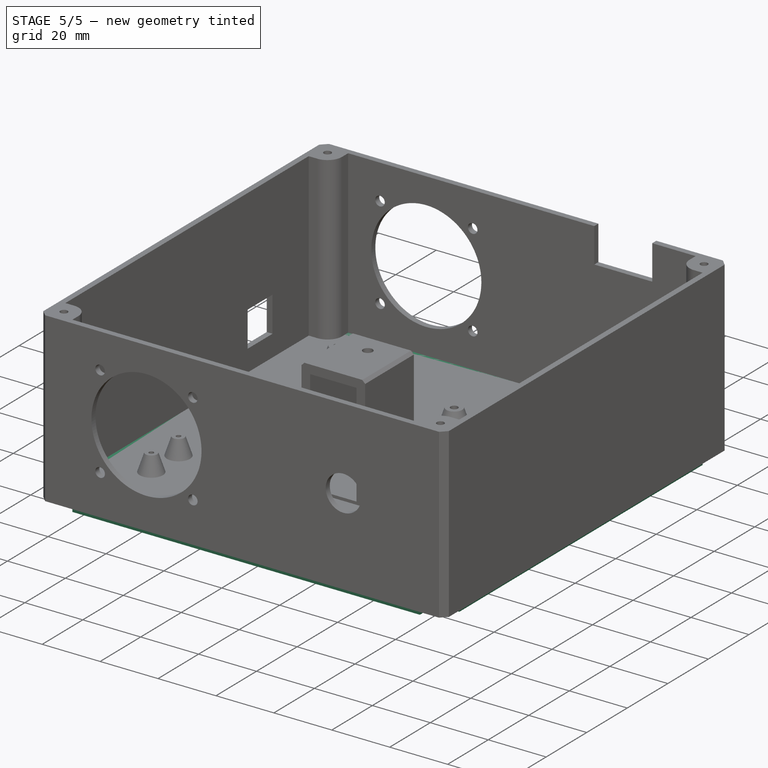
[diagram: stage 5 of 5 — iso view after this stage's code; geometry added in this stage tinted green]
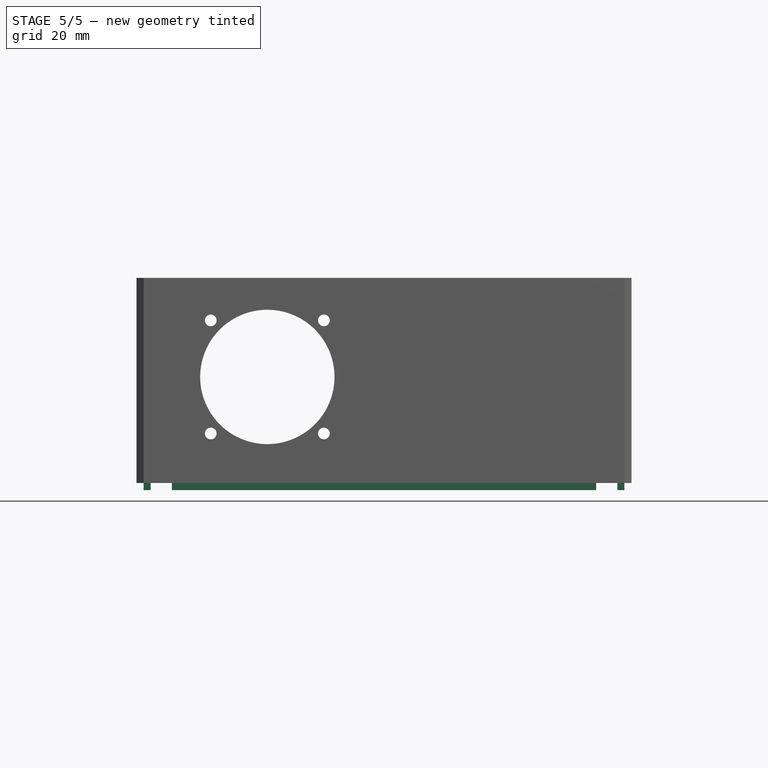
[diagram: stage 5 of 5 — front view after this stage's code; geometry added in this stage tinted green]
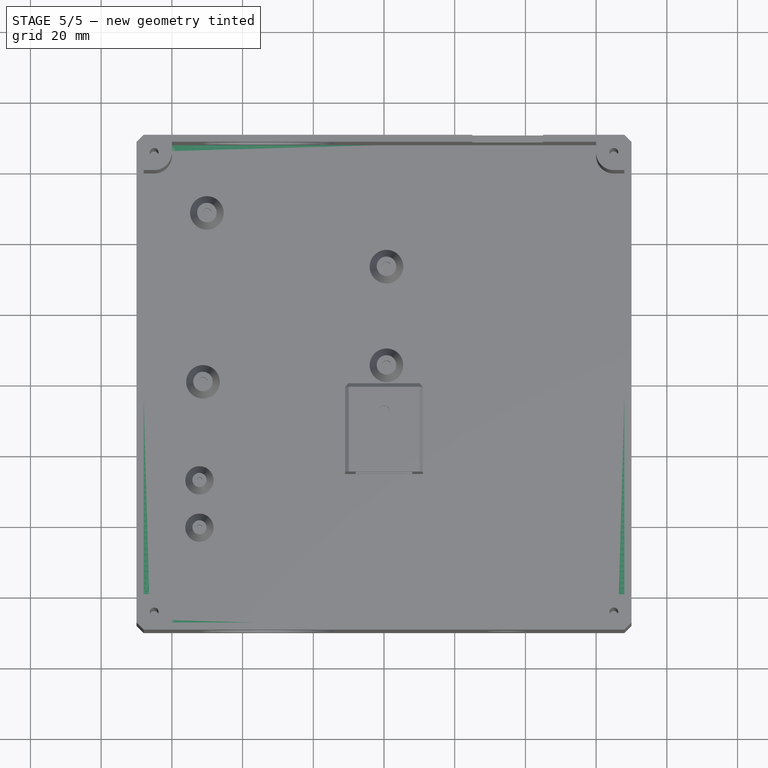
[diagram: stage 5 of 5 — top view after this stage's code; geometry added in this stage tinted green]
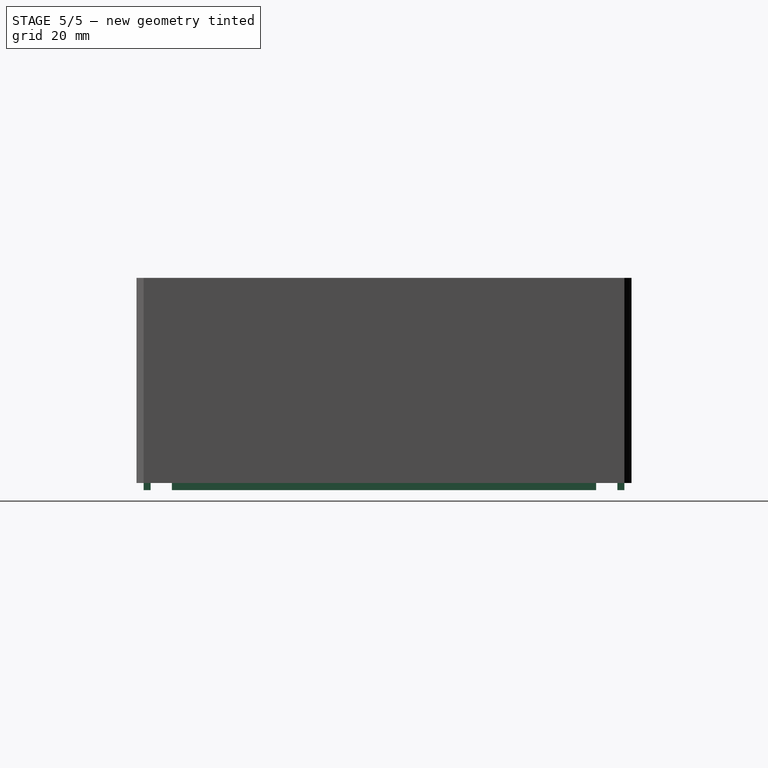
[diagram: stage 5 of 5 — right view after this stage's code; geometry added in this stage tinted green]
FEATURE [Sketcher::SketchObject] Sketch012  label="Base Sketch001"
  ArcFitTolerance = 1e-06
  AttachmentSupport = -> [XY_Plane001]
  FullyConstrained = true
  MakeInternals = false
  MapMode = 5
  expr: Constraints[10] = <<Spreadsheet>>.Box_Width
  expr: Constraints[11] = <<Spreadsheet>>.Box_Depth
  sketch-geometry (5):
    g0: LineSegment StartX=70 StartY=70 StartZ=0 EndX=-70 EndY=70 EndZ=0
    g1: LineSegment StartX=-70 StartY=70 StartZ=0 EndX=-70 EndY=-70 EndZ=0
    g2: LineSegment StartX=-70 StartY=-70 StartZ=0 EndX=70 EndY=-70 EndZ=0
    g3: LineSegment StartX=70 StartY=-70 StartZ=0 EndX=70 EndY=70 EndZ=0
    g4: GeomPoint [constr] X=0 Y=0 Z=0
  constraints (12):
    c: Coincident(g0,g1)
    c: Coincident(g1,g2)
    c: Coincident(g2,g3)
    c: Coincident(g3,g0)
    c: Horizontal(g0)
    c: Horizontal(g2)
    c: Vertical(g1)
    c: Vertical(g3)
    c: Symmetric(g2,g0,g4)
    c: Coincident(g4,g-1)
    c: DistanceX(g2,g2) = 140
    c: DistanceY(g1,g1) = 140
FEATURE [Sketcher::SketchObject] Sketch013  label="Lid Pillars Sketch001"
  ArcFitTolerance = 1e-06
  AttachmentSupport = -> [XY_Plane001]
  FullyConstrained = true
  MakeInternals = false
  MapMode = 5
  expr: Constraints[107] = <<Spreadsheet>>.Wall_Thickness
  expr: Constraints[108] = <<Spreadsheet>>.Box_Depth - 20
  expr: Constraints[109] = <<Spreadsheet>>.Wall_Thickness
  expr: Constraints[10] = <<Spreadsheet>>.Box_Width
  expr: Constraints[110] = <<Spreadsheet>>.Wall_Thickness
  expr: Constraints[114] = <<Spreadsheet>>.Wall_Thickness
  expr: Constraints[11] = <<Spreadsheet>>.Box_Depth
  expr: Constraints[56] = <<Spreadsheet>>.PCB_Tap_Dia
  expr: Constraints[74] = <<Spreadsheet>>.Wall_Thickness
  expr: Constraints[75] = <<Spreadsheet>>.Box_Width - 20
  expr: Constraints[76] = <<Spreadsheet>>.Wall_Thickness
  sketch-geometry (45):
    g0: LineSegment [constr] StartX=70 StartY=70 StartZ=0 EndX=-70 EndY=70 EndZ=0
    g1: LineSegment [constr] StartX=-70 StartY=70 StartZ=0 EndX=-70 EndY=-70 EndZ=0
    g2: LineSegment [constr] StartX=-70 StartY=-70 StartZ=0 EndX=70 EndY=-70 EndZ=0
    g3: LineSegment [constr] StartX=70 StartY=-70 StartZ=0 EndX=70 EndY=70 EndZ=0
    g4: GeomPoint [constr] X=0 Y=0 Z=0
    g5: LineSegment [constr] StartX=-70 StartY=70 StartZ=0 EndX=-70 EndY=60 EndZ=0
    g6: LineSegment [constr] StartX=-70 StartY=60 StartZ=0 EndX=-60 EndY=60 EndZ=0
    g7: LineSegment [constr] StartX=-60 StartY=60 StartZ=0 EndX=-60 EndY=70 EndZ=0
    g8: LineSegment [constr] StartX=-60 StartY=70 StartZ=0 EndX=-70 EndY=70 EndZ=0
    g9: LineSegment [constr] StartX=-70 StartY=-70 StartZ=0 EndX=-60 EndY=-70 EndZ=0
    g10: LineSegment [constr] StartX=-60 StartY=-70 StartZ=0 EndX=-60 EndY=-60 EndZ=0
    g11: LineSegment [constr] StartX=-60 StartY=-60 StartZ=0 EndX=-70 EndY=-60 EndZ=0
    g12: LineSegment [constr] StartX=-70 StartY=-60 StartZ=0 EndX=-70 EndY=-70 EndZ=0
    g13: LineSegment [constr] StartX=70 StartY=-70 StartZ=0 EndX=70 EndY=-60 EndZ=0
    g14: LineSegment [constr] StartX=70 StartY=-60 StartZ=0 EndX=60 EndY=-60 EndZ=0
    g15: LineSegment [constr] StartX=60 StartY=-60 StartZ=0 EndX=60 EndY=-70 EndZ=0
    g16: LineSegment [constr] StartX=60 StartY=-70 StartZ=0 EndX=70 EndY=-70 EndZ=0
    g17: LineSegment [constr] StartX=70 StartY=70 StartZ=0 EndX=60 EndY=70 EndZ=0
    g18: LineSegment [constr] StartX=60 StartY=70 StartZ=0 EndX=60 EndY=60 EndZ=0
    g19: LineSegment [constr] StartX=60 StartY=60 StartZ=0 EndX=70 EndY=60 EndZ=0
    g20: LineSegment [constr] StartX=70 StartY=60 StartZ=0 EndX=70 EndY=70 EndZ=0
    g21: Circle [constr] CenterX=-65 CenterY=65 CenterZ=0 NormalX=0 NormalY=0 NormalZ=1 AngleXU=0 Radius=1.25
    g22: Circle [constr] CenterX=-65 CenterY=-65 CenterZ=0 NormalX=0 NormalY=0 NormalZ=1 AngleXU=0 Radius=1.25
    g23: Circle [constr] CenterX=65 CenterY=65 CenterZ=0 NormalX=0 NormalY=0 NormalZ=1 AngleXU=0 Radius=1.25
    g24: Circle [constr] CenterX=65 CenterY=-65 CenterZ=0 NormalX=0 NormalY=0 NormalZ=1 AngleXU=0 Radius=1.25
    g25: LineSegment StartX=60 StartY=66 StartZ=0 EndX=60 EndY=68 EndZ=0
    g26: LineSegment StartX=60 StartY=68 StartZ=0 EndX=-60 EndY=68 EndZ=0
    g27: LineSegment StartX=-60 StartY=68 StartZ=0 EndX=-60 EndY=66 EndZ=0
    g28: LineSegment StartX=-60 StartY=66 StartZ=0 EndX=60 EndY=66 EndZ=0
    g29: GeomPoint [constr] X=0 Y=67 Z=0
    g30: LineSegment StartX=60 StartY=-68 StartZ=0 EndX=60 EndY=-66 EndZ=0
    g31: LineSegment StartX=60 StartY=-66 StartZ=0 EndX=-60 EndY=-66 EndZ=0
    g32: LineSegment StartX=-60 StartY=-66 StartZ=0 EndX=-60 EndY=-68 EndZ=0
    g33: LineSegment StartX=-60 StartY=-68 StartZ=0 EndX=60 EndY=-68 EndZ=0
    g34: GeomPoint [constr] X=0 Y=-67 Z=0
    g35: LineSegment StartX=-68 StartY=-60 StartZ=0 EndX=-66 EndY=-60 EndZ=0
    g36: LineSegment StartX=-66 StartY=-60 StartZ=0 EndX=-66 EndY=60 EndZ=0
    g37: LineSegment StartX=-66 StartY=60 StartZ=0 EndX=-68 EndY=60 EndZ=0
    g38: LineSegment StartX=-68 StartY=60 StartZ=0 EndX=-68 EndY=-60 EndZ=0
    g39: GeomPoint [constr] X=-67 Y=0 Z=0
    g40: LineSegment StartX=68 StartY=-60 StartZ=0 EndX=68 EndY=60 EndZ=0
    g41: LineSegment StartX=68 StartY=60 StartZ=0 EndX=66 EndY=60 EndZ=0
    g42: LineSegment StartX=66 StartY=60 StartZ=0 EndX=66 EndY=-60 EndZ=0
    g43: LineSegment StartX=66 StartY=-60 StartZ=0 EndX=68 EndY=-60 EndZ=0
    g44: GeomPoint [constr] X=67 Y=0 Z=0
  constraints (116):
    c: Coincident(g0,g1)
    c: Coincident(g1,g2)
    c: Coincident(g2,g3)
    c: Coincident(g3,g0)
    c: Horizontal(g0)
    c: Horizontal(g2)
    c: Vertical(g1)
    c: Vertical(g3)
    c: Symmetric(g2,g0,g4)
    c: Coincident(g4,g-1)
    c: DistanceX(g2,g2) = 140
    c: DistanceY(g1,g1) = 140
    c: Coincident(g5,g6)
    c: Coincident(g6,g7)
    c: Coincident(g7,g8)
    c: Coincident(g8,g5)
    c: Vertical(g5)
    c: Vertical(g7)
    c: Horizontal(g6)
    c: Horizontal(g8)
    c: Distance(g5,g7) = 10
    c: Distance(g6,g8) = 10
    c: Coincident(g5,g0)
    c: Coincident(g9,g10)
    c: Coincident(g10,g11)
    c: Coincident(g11,g12)
    c: Coincident(g12,g9)
    c: Horizontal(g9)
    c: Horizontal(g11)
    c: Vertical(g10)
    c: Vertical(g12)
    c: Coincident(g9,g1)
    c: Coincident(g13,g14)
    c: Coincident(g14,g15)
    c: Coincident(g15,g16)
    c: Coincident(g16,g13)
    c: Vertical(g13)
    c: Vertical(g15)
    c: Horizontal(g14)
    c: Horizontal(g16)
    c: Coincident(g13,g2)
    c: Coincident(g17,g18)
    c: Coincident(g18,g19)
    c: Coincident(g19,g20)
    c: Coincident(g20,g17)
    c: Horizontal(g17)
    c: Horizontal(g19)
    c: Vertical(g18)
    c: Vertical(g20)
    c: Coincident(g17,g0)
    c: Equal(g6,g11)
    c: Equal(g10,g7)
    c: Equal(g18,g7)
    c: Equal(g19,g6)
    c: Equal(g6,g14)
    c: Equal(g15,g7)
    c: Diameter(g21) = 2.5
    c: Symmetric(g0,g6,g21)
    c: Equal(g21,g22)
    c: Equal(g24,g21)
    c: Equal(g21,g23)
    c: Symmetric(g10,g1,g22)
    c: Symmetric(g15,g13,g24)
    c: Symmetric(g0,g18,g23)
    c: Coincident(g25,g26)
    c: Coincident(g26,g27)
    c: Coincident(g27,g28)
    c: Coincident(g28,g25)
    c: Vertical(g25)
    c: Vertical(g27)
    c: Horizontal(g26)
    c: Horizontal(g28)
    c: Symmetric(g27,g25,g29)
    c: PointOnObject(g29,g-2)
    c: DistanceY(g27,g27) = 2
    c: DistanceX(g26,g26) = 120
    c: DistanceY(g26,g0) = 2
    c: Coincident(g30,g31)
    c: Coincident(g31,g32)
    c: Coincident(g32,g33)
    c: Coincident(g33,g30)
    c: Vertical(g30)
    c: Vertical(g32)
    c: Horizontal(g31)
    c: Horizontal(g33)
    c: Symmetric(g32,g30,g34)
    c: PointOnObject(g34,g-2)
    c: Coincident(g35,g36)
    c: Coincident(g36,g37)
    c: Coincident(g37,g38)
    c: Coincident(g38,g35)
    c: Horizontal(g35)
    c: Horizontal(g37)
    c: Vertical(g36)
    c: Vertical(g38)
    c: Symmetric(g37,g35,g39)
    c: PointOnObject(g39,g-1)
    c: Coincident(g40,g41)
    c: Coincident(g41,g42)
    c: Coincident(g42,g43)
    c: Coincident(g43,g40)
    c: Vertical(g40)
    c: Vertical(g42)
    c: Horizontal(g41)
    c: Horizontal(g43)
    c: Symmetric(g42,g40,g44)
    c: PointOnObject(g44,g-1)
    c: DistanceX(g41,g41) = 2
    c: DistanceY(g42,g42) = 120
    c: DistanceX(g40,g19) = 2
    c: DistanceY(g1,g32) = 2
    c: Equal(g28,g31)
    c: Equal(g32,g27)
    c: Equal(g35,g43)
    c: DistanceX(g11,g35) = 2
    c: Equal(g36,g42)
FEATURE [PartDesign::Pad] Pad005  label="Lid Top"
  Direction = (0,0,1)
  Length = 2
  Length2 = 10
  Profile = -> Sketch012
  ReferenceAxis = -> Sketch012 [N_Axis]
  Refine = true
  Suppressed = false
  Type = 0
  expr: Length = <<Spreadsheet>>.Wall_Thickness
FEATURE [PartDesign::Pad] Pad006  label="Lid Bottom"
  BaseFeature = -> Pad005
  Direction = (0,0,1)
  Length = 2
  Length2 = 10
  Profile = -> Sketch013
  ReferenceAxis = -> Sketch013 [N_Axis]
  Refine = true
  Reversed = true
  Suppressed = false
  Type = 0
  expr: Length = <<Spreadsheet>>.Wall_Thickness
FEATURE [Sketcher::SketchObject] Sketch014  label="Lid Bolt Cutout Sketch"
  ArcFitTolerance = 1e-06
  AttachmentOffset = pos=(0,0,2) rot=(0,0,1;0rad)
  AttachmentSupport = -> [XY_Plane001]
  FullyConstrained = true
  MakeInternals = false
  MapMode = 5
  Placement = pos=(0,0,2) rot=(0,0,1;0rad)
  expr: .AttachmentOffset.Base.z = <<Spreadsheet>>.Wall_Thickness
  expr: Constraints[10] = <<Spreadsheet>>.Box_Width
  expr: Constraints[11] = <<Spreadsheet>>.Box_Depth
  expr: Constraints[56] = 3.3
  sketch-geometry (25):
    g0: LineSegment [constr] StartX=70 StartY=70 StartZ=0 EndX=-70 EndY=70 EndZ=0
    g1: LineSegment [constr] StartX=-70 StartY=70 StartZ=0 EndX=-70 EndY=-70 EndZ=0
    g2: LineSegment [constr] StartX=-70 StartY=-70 StartZ=0 EndX=70 EndY=-70 EndZ=0
    g3: LineSegment [constr] StartX=70 StartY=-70 StartZ=0 EndX=70 EndY=70 EndZ=0
    g4: GeomPoint [constr] X=0 Y=0 Z=0
    g5: LineSegment [constr] StartX=-70 StartY=70 StartZ=0 EndX=-70 EndY=60 EndZ=0
    g6: LineSegment [constr] StartX=-70 StartY=60 StartZ=0 EndX=-60 EndY=60 EndZ=0
    g7: LineSegment [constr] StartX=-60 StartY=60 StartZ=0 EndX=-60 EndY=70 EndZ=0
    g8: LineSegment [constr] StartX=-60 StartY=70 StartZ=0 EndX=-70 EndY=70 EndZ=0
    g9: LineSegment [constr] StartX=-70 StartY=-70 StartZ=0 EndX=-60 EndY=-70 EndZ=0
    g10: LineSegment [constr] StartX=-60 StartY=-70 StartZ=0 EndX=-60 EndY=-60 EndZ=0
    g11: LineSegment [constr] StartX=-60 StartY=-60 StartZ=0 EndX=-70 EndY=-60 EndZ=0
    g12: LineSegment [constr] StartX=-70 StartY=-60 StartZ=0 EndX=-70 EndY=-70 EndZ=0
    g13: LineSegment [constr] StartX=70 StartY=-70 StartZ=0 EndX=70 EndY=-60 EndZ=0
    g14: LineSegment [constr] StartX=70 StartY=-60 StartZ=0 EndX=60 EndY=-60 EndZ=0
    g15: LineSegment [constr] StartX=60 StartY=-60 StartZ=0 EndX=60 EndY=-70 EndZ=0
    g16: LineSegment [constr] StartX=60 StartY=-70 StartZ=0 EndX=70 EndY=-70 EndZ=0
    g17: LineSegment [constr] StartX=70 StartY=70 StartZ=0 EndX=60 EndY=70 EndZ=0
    g18: LineSegment [constr] StartX=60 StartY=70 StartZ=0 EndX=60 EndY=60 EndZ=0
    g19: LineSegment [constr] StartX=60 StartY=60 StartZ=0 EndX=70 EndY=60 EndZ=0
    g20: LineSegment [constr] StartX=70 StartY=60 StartZ=0 EndX=70 EndY=70 EndZ=0
    g21: Circle CenterX=-65 CenterY=65 CenterZ=0 NormalX=0 NormalY=0 NormalZ=1 AngleXU=0 Radius=1.65
    g22: Circle CenterX=-65 CenterY=-65 CenterZ=0 NormalX=0 NormalY=0 NormalZ=1 AngleXU=0 Radius=1.65
    g23: Circle CenterX=65 CenterY=65 CenterZ=0 NormalX=0 NormalY=0 NormalZ=1 AngleXU=0 Radius=1.65
    g24: Circle CenterX=65 CenterY=-65 CenterZ=0 NormalX=0 NormalY=0 NormalZ=1 AngleXU=0 Radius=1.65
  constraints (64):
    c: Coincident(g0,g1)
    c: Coincident(g1,g2)
    c: Coincident(g2,g3)
    c: Coincident(g3,g0)
    c: Horizontal(g0)
    c: Horizontal(g2)
    c: Vertical(g1)
    c: Vertical(g3)
    c: Symmetric(g2,g0,g4)
    c: Coincident(g4,g-1)
    c: DistanceX(g2,g2) = 140
    c: DistanceY(g1,g1) = 140
    c: Coincident(g5,g6)
    c: Coincident(g6,g7)
    c: Coincident(g7,g8)
    c: Coincident(g8,g5)
    c: Vertical(g5)
    c: Vertical(g7)
    c: Horizontal(g6)
    c: Horizontal(g8)
    c: Distance(g5,g7) = 10
    c: Distance(g6,g8) = 10
    c: Coincident(g5,g0)
    c: Coincident(g9,g10)
    c: Coincident(g10,g11)
    c: Coincident(g11,g12)
    c: Coincident(g12,g9)
    c: Horizontal(g9)
    c: Horizontal(g11)
    c: Vertical(g10)
    c: Vertical(g12)
    c: Coincident(g9,g1)
    c: Coincident(g13,g14)
    c: Coincident(g14,g15)
    c: Coincident(g15,g16)
    c: Coincident(g16,g13)
    c: Vertical(g13)
    c: Vertical(g15)
    c: Horizontal(g14)
    c: Horizontal(g16)
    c: Coincident(g13,g2)
    c: Coincident(g17,g18)
    c: Coincident(g18,g19)
    c: Coincident(g19,g20)
    c: Coincident(g20,g17)
    c: Horizontal(g17)
    c: Horizontal(g19)
    c: Vertical(g18)
    c: Vertical(g20)
    c: Coincident(g17,g0)
    c: Equal(g6,g11)
    c: Equal(g10,g7)
    c: Equal(g18,g7)
    c: Equal(g19,g6)
    c: Equal(g6,g14)
    c: Equal(g15,g7)
    c: Diameter(g21) = 3.3
    c: Symmetric(g0,g6,g21)
    c: Equal(g21,g22)
    c: Equal(g24,g21)
    c: Equal(g21,g23)
    c: Symmetric(g10,g1,g22)
    c: Symmetric(g15,g13,g24)
    c: Symmetric(g0,g18,g23)
FEATURE [PartDesign::Pocket] Pocket004
  BaseFeature = -> Pad006
  Direction = (0,0,-1)
  Length = 10
  Length2 = 5
  Midplane = true
  Profile = -> Sketch014
  ReferenceAxis = -> Sketch014 [N_Axis]
  Refine = true
  Suppressed = false
  Type = 1
FEATURE [PartDesign::Chamfer] Chamfer002
  Angle = 45
  Base = -> Pocket004 [Edge8,Edge5,Edge1,Edge2]
  BaseFeature = -> Pocket004
  ChamferType = 0
  FlipDirection = false
  Refine = true
  Size = 2
  Size2 = 1
  SupportTransform = false
  Suppressed = false
  UseAllEdges = false
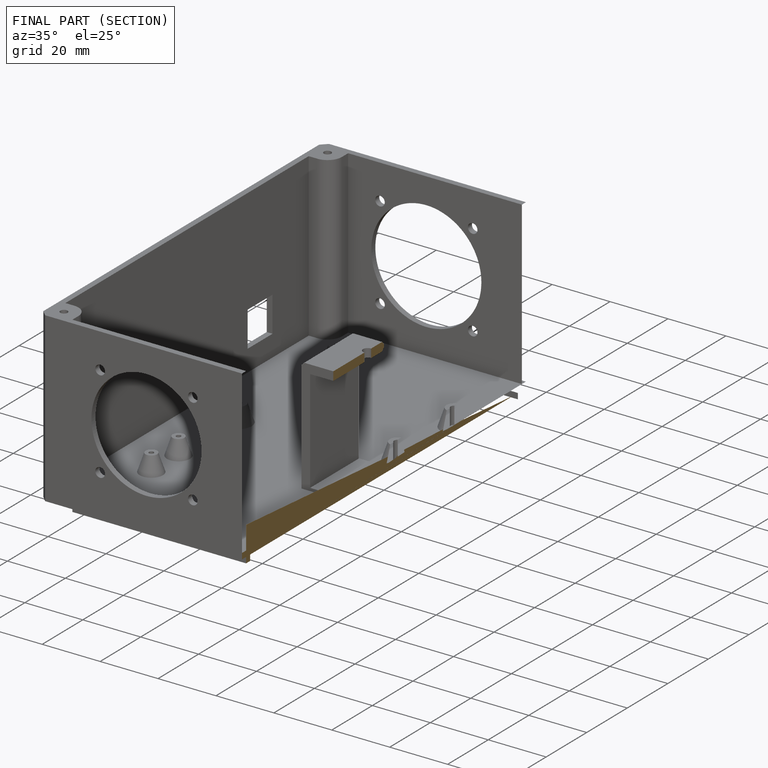
[diagram: finished part — half-section view (interior)]
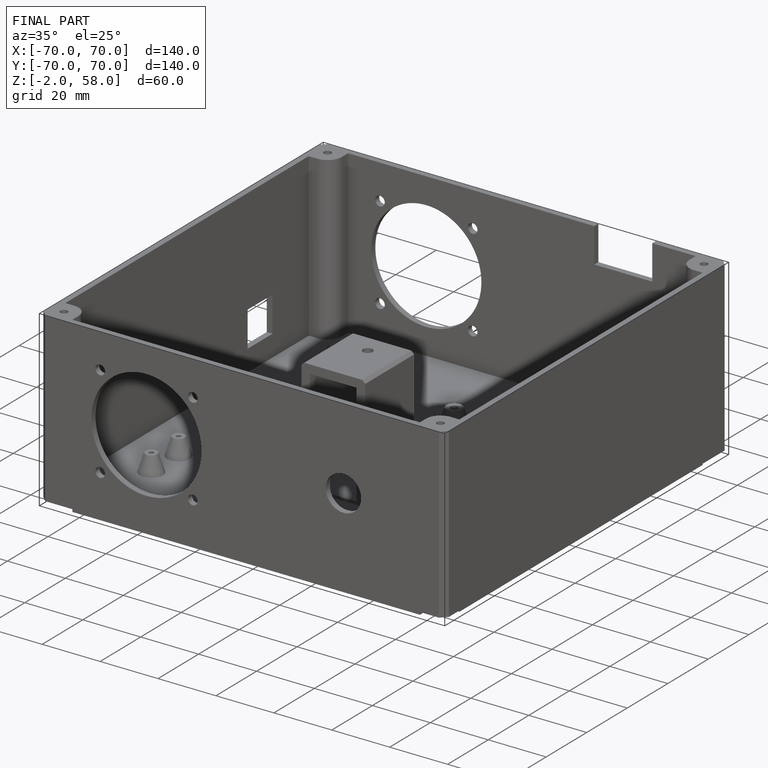
[diagram: finished part — iso view with bounding-box wireframe]
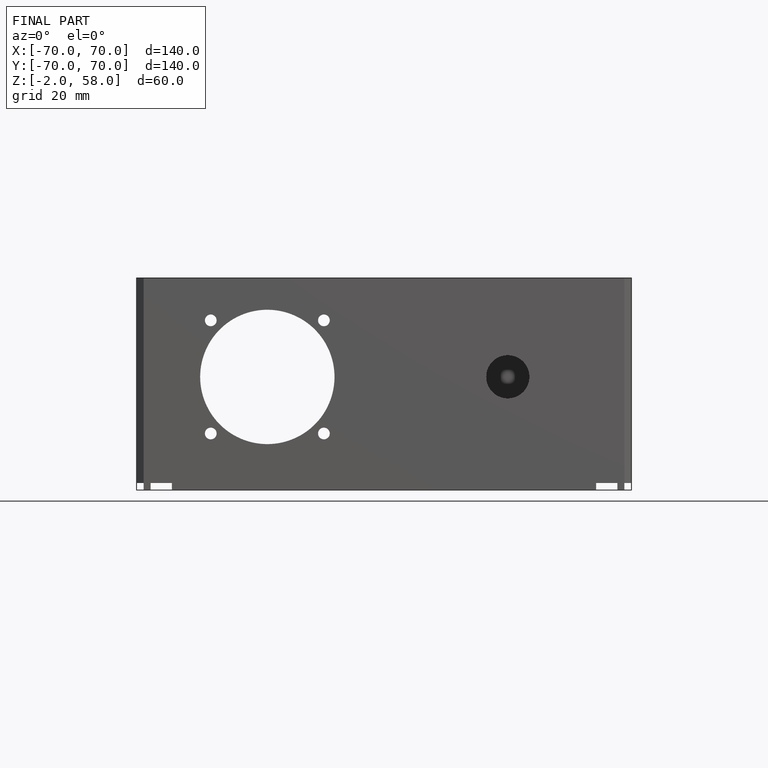
[diagram: finished part — front view with bounding-box wireframe]
